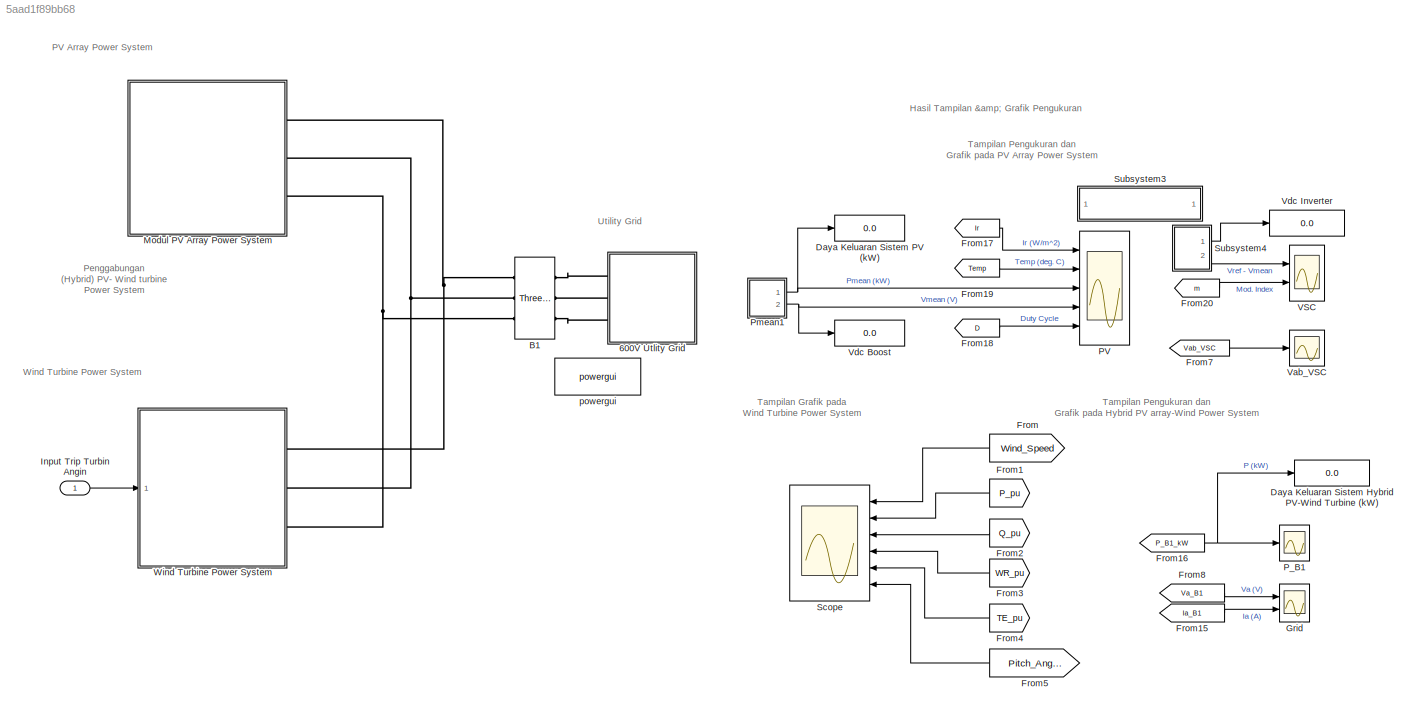
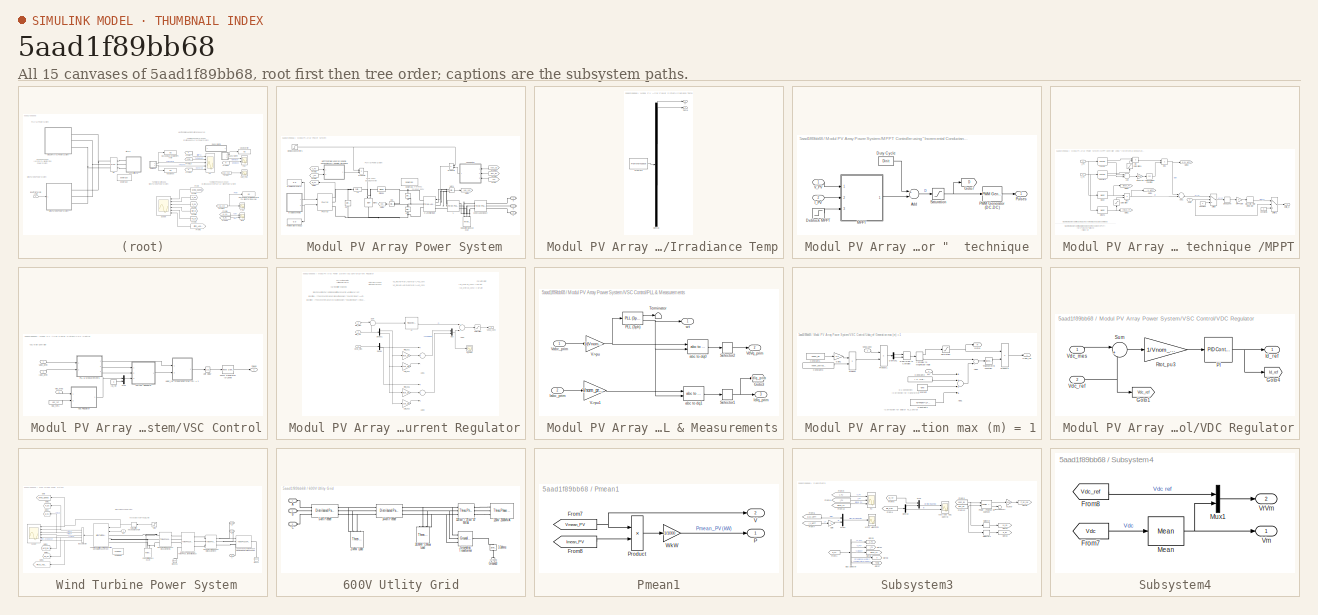
[diagram: thumbnail index - all 15 canvases of the model, root first then tree order]
MODEL slx_5aad1f89bb68
KIND model
CONFIG AbsTol = auto
CONFIG EnableMultiTasking = off
CONFIG FixedStep = auto
CONFIG MaxStep = auto
CONFIG MinStep = auto
CONFIG PreLoadFcn = Ts_Power=1e-6;\nTs_Control=100e-6;
CONFIG RelTol = 1e-3
CONFIG SampleTimeConstraint = Unconstrained
CONFIG Solver = ode5
CONFIG SolverName = ode5
CONFIG StartTime = 0.0
CONFIG StopTime = 12
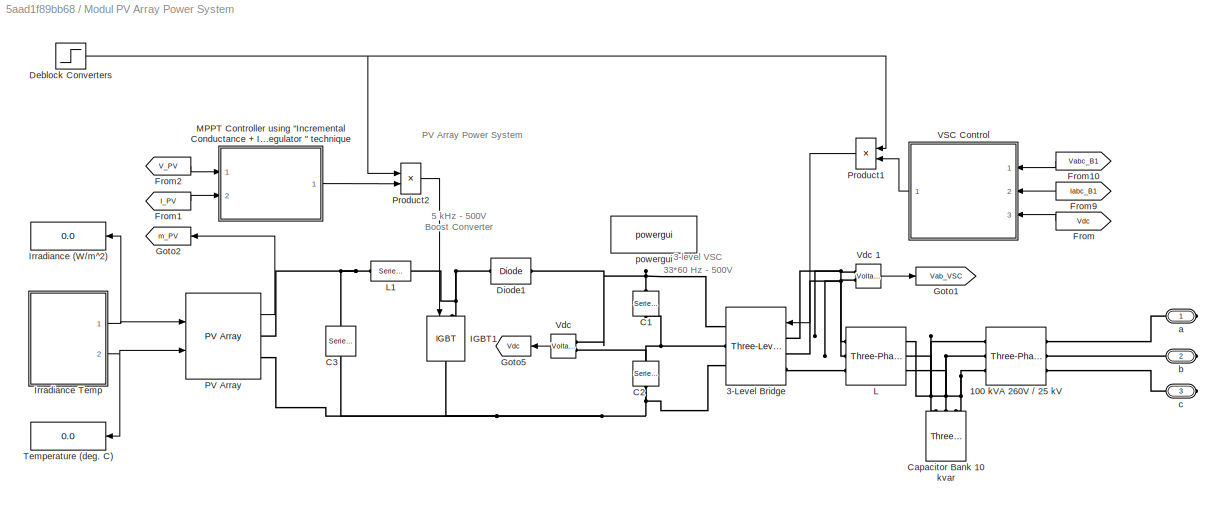
BLOCK [SubSystem]  Modul PV Array Power System
  Ports = [0, 0, 0, 0, 0, 0, 3]
  RequestExecContextInheritance = off
BLOCK [Reference]  Modul PV Array Power System/100 kVA 260V // 25 kV  REF=powerlib/Elements/Three-Phase
Transformer
(Two Windings)
  AttributesFormatString = \n
  Ports = [0, 0, 0, 0, 0, 3, 3]
  SourceBlock = powerlib/Elements/Three-Phase\nTransformer\n(Two Windings)
  SourceProductBaseCode = PS
  SourceProductName = Simscape Electrical
  SourceType = Three-Phase Transformer (Two Windings)
BLOCK [Reference]  Modul PV Array Power System/3-Level Bridge  REF=powerlib/Power
Electronics/Three-Level Bridge
  AttributesFormatString = \n
  Ports = [1, 0, 0, 0, 0, 3, 3]
  SourceBlock = powerlib/Power\nElectronics/Three-Level Bridge
  SourceProductBaseCode = PS
  SourceProductName = Simscape Electrical
  SourceType = Three-Level Bridge
BLOCK [Reference]  Modul PV Array Power System/C1  REF=powerlib/Elements/Series RLC Branch
  AttributesFormatString = \n
  Ports = [0, 0, 0, 0, 0, 1, 1]
  SourceBlock = powerlib/Elements/Series RLC Branch
  SourceProductBaseCode = PS
  SourceProductName = Simscape Electrical
  SourceType = Series RLC Branch
BLOCK [Reference]  Modul PV Array Power System/C2  REF=powerlib/Elements/Series RLC Branch
  AttributesFormatString = \n
  Ports = [0, 0, 0, 0, 0, 1, 1]
  SourceBlock = powerlib/Elements/Series RLC Branch
  SourceProductBaseCode = PS
  SourceProductName = Simscape Electrical
  SourceType = Series RLC Branch
BLOCK [Reference]  Modul PV Array Power System/C3  REF=powerlib/Elements/Series RLC Branch
  AttributesFormatString = \n
  Ports = [0, 0, 0, 0, 0, 1, 1]
  SourceBlock = powerlib/Elements/Series RLC Branch
  SourceProductBaseCode = PS
  SourceProductName = Simscape Electrical
  SourceType = Series RLC Branch
BLOCK [Reference]  Modul PV Array Power System/Capacitor Bank 10 kvar  REF=powerlib/Elements/Three-Phase
Series RLC Load
  AttributesFormatString = \n
  Ports = [0, 0, 0, 0, 0, 3]
  SourceBlock = powerlib/Elements/Three-Phase\nSeries RLC Load
  SourceProductBaseCode = PS
  SourceProductName = Simscape Electrical
  SourceType = Three-Phase Series RLC Load
BLOCK [Step]  Modul PV Array Power System/Deblock Converters
  SampleTime = 0
  Time = 0.05
BLOCK [Reference]  Modul PV Array Power System/Diode1  REF=powerlib/Power
Electronics/Diode
  Ports = [0, 0, 0, 0, 0, 1, 1]
  SourceBlock = powerlib/Power\nElectronics/Diode
  SourceProductBaseCode = PS
  SourceProductName = Simscape Electrical
  SourceType = Diode
BLOCK [From]  Modul PV Array Power System/From
  GotoTag = Vdc
  TagVisibility = global
BLOCK [From]  Modul PV Array Power System/From1
  CloseFcn = tagdialog Close
  GotoTag = I_PV
  TagVisibility = global
BLOCK [From]  Modul PV Array Power System/From10
  CloseFcn = tagdialog Close
  GotoTag = Vabc_B1
  TagVisibility = global
BLOCK [From]  Modul PV Array Power System/From2
  CloseFcn = tagdialog Close
  GotoTag = V_PV
  TagVisibility = global
BLOCK [From]  Modul PV Array Power System/From9
  CloseFcn = tagdialog Close
  GotoTag = Iabc_B1
  TagVisibility = global
BLOCK [Goto]  Modul PV Array Power System/Goto1
  GotoTag = Vab_VSC
  TagVisibility = global
BLOCK [Goto]  Modul PV Array Power System/Goto2
  GotoTag = m_PV
  TagVisibility = global
BLOCK [Goto]  Modul PV Array Power System/Goto5
  GotoTag = Vdc
  TagVisibility = global
BLOCK [Reference]  Modul PV Array Power System/IGBT1  REF=powerlib/Power
Electronics/IGBT
  Ports = [1, 0, 0, 0, 0, 1, 1]
  SourceBlock = powerlib/Power\nElectronics/IGBT
  SourceProductBaseCode = PS
  SourceProductName = Simscape Electrical
  SourceType = IGBT
BLOCK [Display]  Modul PV Array Power System/Irradiance (W//m^2)
  Decimation = 1000
  Format = bank
  Ports = [1]
BLOCK [SubSystem]  Modul PV Array Power System/Irradiance Temp
  ClipboardFcn = sigbuilder_block('clipboard');
  CloseFcn = sigbuilder_block('close');
  ContinueFcn = sigbuilder_block('continue')
  CopyFcn = sigbuilder_block('copy');
  DeleteFcn = sigbuilder_block('delete');
  LoadFcn = sigbuilder_block('load');
  MaskHideContents = on
  ModelCloseFcn = sigbuilder_block('modelClose');
  NameChangeFcn = sigbuilder_block('namechange');
  OpenFcn = sigbuilder_block('open',[216.75 77.25 531 395.25 ]);
  PauseFcn = sigbuilder_block('pause')
  Ports = [0, 2]
  PreSaveFcn = sigbuilder_block('preSave');
  RequestExecContextInheritance = off
  StartFcn = sigbuilder_block('start');
  StopFcn = sigbuilder_block('stop');
  Tag = STV Subsys
BLOCK [Demux]  Modul PV Array Power System/Irradiance Temp/Demux
  Outputs = 2
  Ports = [1, 2]
  Tag = STV Demux
BLOCK [FromWorkspace]  Modul PV Array Power System/Irradiance Temp/FromWs
  SampleTime = 0
  Tag = STV FromWs
  VariableName = tuvar
  ZeroCross = on
BLOCK [Outport]  Modul PV Array Power System/Irradiance Temp/Ir
  IconDisplay = Port number
  Tag = STV Outport
BLOCK [Outport]  Modul PV Array Power System/Irradiance Temp/Temp
  IconDisplay = Port number
  Port = 2
  Tag = STV Outport
BLOCK [Reference]  Modul PV Array Power System/L  REF=powerlib/Elements/Three-Phase
Series RLC Branch
  AttributesFormatString = \n
  Ports = [0, 0, 0, 0, 0, 3, 3]
  SourceBlock = powerlib/Elements/Three-Phase\nSeries RLC Branch
  SourceProductBaseCode = PS
  SourceProductName = Simscape Electrical
  SourceType = Three-Phase Series RLC Branch
BLOCK [Reference]  Modul PV Array Power System/L1  REF=powerlib/Elements/Series RLC Branch
  Ports = [0, 0, 0, 0, 0, 1, 1]
  SourceBlock = powerlib/Elements/Series RLC Branch
  SourceProductBaseCode = PS
  SourceProductName = Simscape Electrical
  SourceType = Series RLC Branch
BLOCK [SubSystem]  Modul PV Array Power System/MPPT Controller using  "Incremental Conductance + Integral Regulator "  technique 
  Ports = [2, 1]
  RequestExecContextInheritance = off
BLOCK [Sum]  Modul PV Array Power System/MPPT Controller using  "Incremental Conductance + Integral Regulator "  technique /Add
  InputSameDT = off
  Inputs = +-
  OutDataTypeStr = Inherit: Inherit via internal rule
  Ports = [2, 1]
  SaturateOnIntegerOverflow = off
BLOCK [Step]  Modul PV Array Power System/MPPT Controller using  "Incremental Conductance + Integral Regulator "  technique /Deblock MPPT
  SampleTime = 0
  Time = 0.4
BLOCK [Constant]  Modul PV Array Power System/MPPT Controller using  "Incremental Conductance + Integral Regulator "  technique /Duty Cycle
  Value = Dinit
BLOCK [Goto]  Modul PV Array Power System/MPPT Controller using  "Incremental Conductance + Integral Regulator "  technique /Goto7
  GotoTag = D
  TagVisibility = global
BLOCK [Inport]  Modul PV Array Power System/MPPT Controller using  "Incremental Conductance + Integral Regulator "  technique /I_PV
  IconDisplay = Port number
  Port = 2
BLOCK [SubSystem]  Modul PV Array Power System/MPPT Controller using  "Incremental Conductance + Integral Regulator "  technique /MPPT
  Ports = [3, 1]
  RequestExecContextInheritance = off
BLOCK [Sum]  Modul PV Array Power System/MPPT Controller using  "Incremental Conductance + Integral Regulator "  technique /MPPT/Add
  InputSameDT = off
  Inputs = +-
  OutDataTypeStr = Inherit: Inherit via internal rule
  Ports = [2, 1]
  SaturateOnIntegerOverflow = off
BLOCK [Sum]  Modul PV Array Power System/MPPT Controller using  "Incremental Conductance + Integral Regulator "  technique /MPPT/Add1
  InputSameDT = off
  OutDataTypeStr = Inherit: Inherit via internal rule
  Ports = [2, 1]
  SaturateOnIntegerOverflow = off
BLOCK [Constant]  Modul PV Array Power System/MPPT Controller using  "Incremental Conductance + Integral Regulator "  technique /MPPT/Constant
  Value = 0
BLOCK [Constant]  Modul PV Array Power System/MPPT Controller using  "Incremental Conductance + Integral Regulator "  technique /MPPT/Constant1
  Value = 0
BLOCK [DeadZone]  Modul PV Array Power System/MPPT Controller using  "Incremental Conductance + Integral Regulator "  technique /MPPT/Dead Zone
  LowerValue = -0.05
  UpperValue = 0.05
BLOCK [Outport]  Modul PV Array Power System/MPPT Controller using  "Incremental Conductance + Integral Regulator "  technique /MPPT/Delta_D
  IconDisplay = Port number
BLOCK [DiscreteIntegrator]  Modul PV Array Power System/MPPT Controller using  "Incremental Conductance + Integral Regulator "  technique /MPPT/Discrete-Time Integrator
  ICPrevOutput = DiscIntNeverNeededParam
  ICPrevScaledInput = DiscIntNeverNeededParam
  LimitOutput = on
  LowerSaturationLimit = -1
  Ports = [1, 1]
  SampleTime = Ts_Control
  UpperSaturationLimit = 1
BLOCK [Reference]  Modul PV Array Power System/MPPT Controller using  "Incremental Conductance + Integral Regulator "  technique /MPPT/Fourier  REF=powerlib_meascontrol/Measurements/Fourier
  Ports = [1, 2]
  SourceBlock = powerlib_meascontrol/Measurements/Fourier
  SourceProductBaseCode = PS
  SourceProductName = Simscape Electrical
  SourceType = Fourier
BLOCK [Reference]  Modul PV Array Power System/MPPT Controller using  "Incremental Conductance + Integral Regulator "  technique /MPPT/Fourier1  REF=powerlib_meascontrol/Measurements/Fourier
  Ports = [1, 2]
  SourceBlock = powerlib_meascontrol/Measurements/Fourier
  SourceProductBaseCode = PS
  SourceProductName = Simscape Electrical
  SourceType = Fourier
BLOCK [Goto]  Modul PV Array Power System/MPPT Controller using  "Incremental Conductance + Integral Regulator "  technique /MPPT/Goto1
  GotoTag = Vmean_PV
  TagVisibility = global
BLOCK [Goto]  Modul PV Array Power System/MPPT Controller using  "Incremental Conductance + Integral Regulator "  technique /MPPT/Goto2
  GotoTag = dI_dV_MPPT
  TagVisibility = global
BLOCK [Goto]  Modul PV Array Power System/MPPT Controller using  "Incremental Conductance + Integral Regulator "  technique /MPPT/Goto3
  GotoTag = I_V_MPPT
  TagVisibility = global
BLOCK [Goto]  Modul PV Array Power System/MPPT Controller using  "Incremental Conductance + Integral Regulator "  technique /MPPT/Goto5
  GotoTag = Imean_PV
  TagVisibility = global
BLOCK [Inport]  Modul PV Array Power System/MPPT Controller using  "Incremental Conductance + Integral Regulator "  technique /MPPT/I_PV
  IconDisplay = Port number
  Port = 2
BLOCK [Gain]  Modul PV Array Power System/MPPT Controller using  "Incremental Conductance + Integral Regulator "  technique /MPPT/MPPT Gain
  Gain = 5
  OutDataTypeStr = Inherit: Inherit via internal rule
  ParamDataTypeStr = Inherit: Inherit via internal rule
  SaturateOnIntegerOverflow = off
BLOCK [Reference]  Modul PV Array Power System/MPPT Controller using  "Incremental Conductance + Integral Regulator "  technique /MPPT/Mean  REF=powerlib_meascontrol/Measurements/Mean
  Ports = [1, 1]
  SourceBlock = powerlib_meascontrol/Measurements/Mean
  SourceProductBaseCode = PS
  SourceProductName = Simscape Electrical
  SourceType = Mean
BLOCK [Reference]  Modul PV Array Power System/MPPT Controller using  "Incremental Conductance + Integral Regulator "  technique /MPPT/Mean1  REF=powerlib_meascontrol/Measurements/Mean
  Ports = [1, 1]
  SourceBlock = powerlib_meascontrol/Measurements/Mean
  SourceProductBaseCode = PS
  SourceProductName = Simscape Electrical
  SourceType = Mean
BLOCK [Saturate]  Modul PV Array Power System/MPPT Controller using  "Incremental Conductance + Integral Regulator "  technique /MPPT/Saturation
  InputPortMap = u0
  LowerLimit = eps
  Ports = [1, 1]
  UpperLimit = inf
BLOCK [Saturate]  Modul PV Array Power System/MPPT Controller using  "Incremental Conductance + Integral Regulator "  technique /MPPT/Saturation1
  InputPortMap = u0
  LowerLimit = eps
  Ports = [1, 1]
  UpperLimit = inf
BLOCK [Switch]  Modul PV Array Power System/MPPT Controller using  "Incremental Conductance + Integral Regulator "  technique /MPPT/Switch
  InputSameDT = off
  SaturateOnIntegerOverflow = off
  Threshold = 0.5
BLOCK [Switch]  Modul PV Array Power System/MPPT Controller using  "Incremental Conductance + Integral Regulator "  technique /MPPT/Switch1
  InputSameDT = off
  SaturateOnIntegerOverflow = off
  Threshold = 0.5
BLOCK [Trigonometry]  Modul PV Array Power System/MPPT Controller using  "Incremental Conductance + Integral Regulator "  technique /MPPT/Trigonometric Function
  Operator = cos
  Ports = [1, 1]
BLOCK [Inport]  Modul PV Array Power System/MPPT Controller using  "Incremental Conductance + Integral Regulator "  technique /MPPT/V_PV
  IconDisplay = Port number
BLOCK [Gain]  Modul PV Array Power System/MPPT Controller using  "Incremental Conductance + Integral Regulator "  technique /MPPT/deg2rad
  Gain = pi/180
  OutDataTypeStr = Inherit: Inherit via internal rule
  ParamDataTypeStr = Inherit: Inherit via internal rule
  SaturateOnIntegerOverflow = off
BLOCK [Product]  Modul PV Array Power System/MPPT Controller using  "Incremental Conductance + Integral Regulator "  technique /MPPT/div
  InputSameDT = off
  Inputs = */
  OutDataTypeStr = Inherit: Inherit via internal rule
  Ports = [2, 1]
  SaturateOnIntegerOverflow = off
BLOCK [Product]  Modul PV Array Power System/MPPT Controller using  "Incremental Conductance + Integral Regulator "  technique /MPPT/div1
  InputSameDT = off
  Inputs = **
  OutDataTypeStr = Inherit: Inherit via internal rule
  Ports = [2, 1]
  SaturateOnIntegerOverflow = off
BLOCK [Product]  Modul PV Array Power System/MPPT Controller using  "Incremental Conductance + Integral Regulator "  technique /MPPT/div2
  InputSameDT = off
  Inputs = */
  OutDataTypeStr = Inherit: Inherit via internal rule
  Ports = [2, 1]
  SaturateOnIntegerOverflow = off
BLOCK [Inport]  Modul PV Array Power System/MPPT Controller using  "Incremental Conductance + Integral Regulator "  technique /MPPT/on//off
  IconDisplay = Port number
  Port = 3
BLOCK [Reference]  Modul PV Array Power System/MPPT Controller using  "Incremental Conductance + Integral Regulator "  technique /PWM Generator (DC-DC)  REF=powerlib_meascontrol/Pulse & Signal
Generators/PWM Generator
(DC-DC)
  Ports = [1, 1]
  SourceBlock = powerlib_meascontrol/Pulse & Signal\nGenerators/PWM Generator\n(DC-DC)
  SourceProductBaseCode = PS
  SourceProductName = Simscape Electrical
  SourceType = PWM Generator (DC-DC)
BLOCK [Outport]  Modul PV Array Power System/MPPT Controller using  "Incremental Conductance + Integral Regulator "  technique /Pulses
  IconDisplay = Port number
BLOCK [Saturate]  Modul PV Array Power System/MPPT Controller using  "Incremental Conductance + Integral Regulator "  technique /Saturation
  InputPortMap = u0
  LowerLimit = 0
  Ports = [1, 1]
  UpperLimit = 1
BLOCK [Inport]  Modul PV Array Power System/MPPT Controller using  "Incremental Conductance + Integral Regulator "  technique /V_PV
  IconDisplay = Port number
BLOCK [Reference]  Modul PV Array Power System/PV Array  REF=re_lib/Solar/PV Array
  Ports = [2, 1, 0, 0, 0, 0, 2]
  SourceBlock = re_lib/Solar/PV Array
  SourceProductBaseCode = PS
  SourceProductName = Simscape Electrical
  SourceType = PV array
BLOCK [Product]  Modul PV Array Power System/Product1
  InputSameDT = off
  OutDataTypeStr = Inherit: Inherit via internal rule
  Ports = [2, 1]
  SaturateOnIntegerOverflow = off
BLOCK [Product]  Modul PV Array Power System/Product2
  InputSameDT = off
  OutDataTypeStr = Inherit: Inherit via internal rule
  Ports = [2, 1]
  SaturateOnIntegerOverflow = off
BLOCK [Display]  Modul PV Array Power System/Temperature (deg. C)
  Decimation = 1000
  Format = bank
  Ports = [1]
BLOCK [SubSystem]  Modul PV Array Power System/VSC Control
  Ports = [3, 1]
  RequestExecContextInheritance = off
BLOCK [SubSystem]  Modul PV Array Power System/VSC Control/Current Regulator
  Ports = [3, 1]
  RequestExecContextInheritance = off
BLOCK [Sum]  Modul PV Array Power System/VSC Control/Current Regulator/Add1
  InputSameDT = off
  Inputs = ++-
  OutDataTypeStr = Inherit: Inherit via internal rule
  Ports = [3, 1]
  SaturateOnIntegerOverflow = off
BLOCK [Sum]  Modul PV Array Power System/VSC Control/Current Regulator/Add2
  InputSameDT = off
  OutDataTypeStr = Inherit: Inherit via internal rule
  Ports = [2, 1]
  SaturateOnIntegerOverflow = off
BLOCK [Sum]  Modul PV Array Power System/VSC Control/Current Regulator/Add3
  InputSameDT = off
  Inputs = +++
  OutDataTypeStr = Inherit: Inherit via internal rule
  Ports = [3, 1]
  SaturateOnIntegerOverflow = off
BLOCK [Demux]  Modul PV Array Power System/VSC Control/Current Regulator/Demux
  DisplayOption = bar
  Outputs = 2
  Ports = [1, 2]
BLOCK [Demux]  Modul PV Array Power System/VSC Control/Current Regulator/Demux1
  DisplayOption = bar
  Outputs = 2
  Ports = [1, 2]
BLOCK [Inport]  Modul PV Array Power System/VSC Control/Current Regulator/IdIq_mes
  IconDisplay = Port number
  Port = 2
  PortDimensions = 2
BLOCK [Inport]  Modul PV Array Power System/VSC Control/Current Regulator/IdIq_ref
  IconDisplay = Port number
  Port = 3
  PortDimensions = 2
BLOCK [Gain]  Modul PV Array Power System/VSC Control/Current Regulator/Ltot_pu1
  Gain = Ltot_pu
BLOCK [Gain]  Modul PV Array Power System/VSC Control/Current Regulator/Ltot_pu2
  Gain = Ltot_pu
BLOCK [Mux]  Modul PV Array Power System/VSC Control/Current Regulator/Mux
  DisplayOption = bar
  Inputs = 2
  Ports = [2, 1]
BLOCK [Reference]  Modul PV Array Power System/VSC Control/Current Regulator/PI  REF=simulink/Continuous/PID Controller
  Ports = [1, 1]
  SourceBlock = simulink/Continuous/PID Controller
  SourceProductBaseCode = SL
  SourceProductName = Simulink
  SourceType = PID 1dof
BLOCK [Scope]  Modul PV Array Power System/VSC Control/Current Regulator/PI_Ireg1
  Floating = off
  NumInputPorts = 1
  Ports = [1]
  ScopeSpecificationString = Simulink.scopes.TimeScopeBlockCfg('CurrentConfiguration', extmgr.ConfigurationSet(extmgr.Configuration('Core','General UI',true),extmgr.Configuration('Core','Source UI',true),extmgr.Configuration('Sources','WiredSimulink',true,'DataLoggingSaveFormat','Array','DataLoggingDecimation','1','DataLoggingDecimateData',true),extmgr.Configuration('Visuals','Time Domain',true,'DisplayPropertyDefaults',struc...<+826ch>
BLOCK [Gain]  Modul PV Array Power System/VSC Control/Current Regulator/Rtot_pu1
  Gain = Rtot_pu
BLOCK [Gain]  Modul PV Array Power System/VSC Control/Current Regulator/Rtot_pu5
  Gain = Rtot_pu
BLOCK [Saturate]  Modul PV Array Power System/VSC Control/Current Regulator/Saturation
  InputPortMap = u0
  LowerLimit = -2
  Ports = [1, 1]
  UpperLimit = 2
BLOCK [Sum]  Modul PV Array Power System/VSC Control/Current Regulator/Sum
  IconShape = round
  InputSameDT = off
  Inputs = |-+
  OutDataTypeStr = Inherit: Inherit via internal rule
  Ports = [2, 1]
  SaturateOnIntegerOverflow = off
BLOCK [Outport]  Modul PV Array Power System/VSC Control/Current Regulator/VdVq_conv
  IconDisplay = Port number
BLOCK [Inport]  Modul PV Array Power System/VSC Control/Current Regulator/VdVq_mes
  IconDisplay = Port number
  PortDimensions = 2
BLOCK [Inport]  Modul PV Array Power System/VSC Control/Iabc_prim
  IconDisplay = Port number
  Port = 2
  PortDimensions = 3
BLOCK [Constant]  Modul PV Array Power System/VSC Control/Iq_ref
  Value = 0
BLOCK [Mux]  Modul PV Array Power System/VSC Control/Mux
  DisplayOption = bar
  Inputs = 2
  Ports = [2, 1]
BLOCK [SubSystem]  Modul PV Array Power System/VSC Control/PLL & Measurements
  Ports = [2, 3]
  RequestExecContextInheritance = off
BLOCK [Goto]  Modul PV Array Power System/VSC Control/PLL & Measurements/Goto3
  GotoTag = IdIq_prim
  TagVisibility = global
BLOCK [Inport]  Modul PV Array Power System/VSC Control/PLL & Measurements/Iabc_prim
  IconDisplay = Port number
  Port = 2
BLOCK [Outport]  Modul PV Array Power System/VSC Control/PLL & Measurements/IdIq_prim
  IconDisplay = Port number
  Port = 3
BLOCK [Reference]  Modul PV Array Power System/VSC Control/PLL & Measurements/PLL (3ph)  REF=powerlib_meascontrol/PLL/PLL
(3ph)
  Ports = [1, 2]
  SourceBlock = powerlib_meascontrol/PLL/PLL\n(3ph)
  SourceProductBaseCode = PS
  SourceProductName = Simscape Electrical
  SourceType = PLL (3ph)
BLOCK [Selector]  Modul PV Array Power System/VSC Control/PLL & Measurements/Selector1
  IndexOptions = Index vector (dialog)
  Indices = [1 2]
  InputPortWidth = 3
  OutputSizes = 1
  Ports = [1, 1]
BLOCK [Selector]  Modul PV Array Power System/VSC Control/PLL & Measurements/Selector2
  IndexOptions = Index vector (dialog)
  Indices = [1 2]
  InputPortWidth = 3
  OutputSizes = 1
  Ports = [1, 1]
BLOCK [Terminator]  Modul PV Array Power System/VSC Control/PLL & Measurements/Terminator
BLOCK [Gain]  Modul PV Array Power System/VSC Control/PLL & Measurements/V->pu
  Gain = 1/(Vnom_prim*sqrt(2)/sqrt(3))
BLOCK [Gain]  Modul PV Array Power System/VSC Control/PLL & Measurements/V->pu1
  Gain = Vnom_prim*sqrt(3)/Pnom/sqrt(2)
BLOCK [Inport]  Modul PV Array Power System/VSC Control/PLL & Measurements/Vabc_prim
  IconDisplay = Port number
BLOCK [Outport]  Modul PV Array Power System/VSC Control/PLL & Measurements/VdVq_prim
  IconDisplay = Port number
  Port = 2
BLOCK [Reference]  Modul PV Array Power System/VSC Control/PLL & Measurements/abc to dq0  REF=powerlib_meascontrol/Transformations/abc to dq0
  Ports = [2, 1]
  SourceBlock = powerlib_meascontrol/Transformations/abc to dq0
  SourceProductBaseCode = PS
  SourceProductName = Simscape Electrical
  SourceType = abc to dq0 Transformation
BLOCK [Reference]  Modul PV Array Power System/VSC Control/PLL & Measurements/abc to dq1  REF=powerlib_meascontrol/Transformations/abc to dq0
  Ports = [2, 1]
  SourceBlock = powerlib_meascontrol/Transformations/abc to dq0
  SourceProductBaseCode = PS
  SourceProductName = Simscape Electrical
  SourceType = abc to dq0 Transformation
BLOCK [Outport]  Modul PV Array Power System/VSC Control/PLL & Measurements/wt
  IconDisplay = Port number
BLOCK [Reference]  Modul PV Array Power System/VSC Control/PWM Generator (3-Level)  REF=powerlib_meascontrol/Pulse & Signal
Generators/PWM Generator
(3-Level)
  Ports = [1, 1]
  SourceBlock = powerlib_meascontrol/Pulse & Signal\nGenerators/PWM Generator\n(3-Level)
  SourceProductBaseCode = PS
  SourceProductName = Simscape Electrical
  SourceType = PWM Generator (3-Level)
BLOCK [Outport]  Modul PV Array Power System/VSC Control/Pulses
  IconDisplay = Port number
BLOCK [SubSystem]  Modul PV Array Power System/VSC Control/Uabc_ref Generation max (m) = 1
  Ports = [2, 1]
  RequestExecContextInheritance = off
BLOCK [Sum]  Modul PV Array Power System/VSC Control/Uabc_ref Generation max (m) = 1/Add1
  InputSameDT = off
  Inputs = ++++
  OutDataTypeStr = Inherit: Inherit via internal rule
  Ports = [4, 1]
  SaturateOnIntegerOverflow = off
BLOCK [Sum]  Modul PV Array Power System/VSC Control/Uabc_ref Generation max (m) = 1/Add2
  InputSameDT = off
  OutDataTypeStr = Inherit: Inherit via internal rule
  Ports = [2, 1]
  SaturateOnIntegerOverflow = off
BLOCK [ComplexToMagnitudeAngle]  Modul PV Array Power System/VSC Control/Uabc_ref Generation max (m) = 1/Complex to Magnitude-Angle
  Ports = [1, 2]
BLOCK [Constant]  Modul PV Array Power System/VSC Control/Uabc_ref Generation max (m) = 1/Constant
  Value = -pi/6
BLOCK [Constant]  Modul PV Array Power System/VSC Control/Uabc_ref Generation max (m) = 1/Constant1
  Value = Vnom_dc
BLOCK [Constant]  Modul PV Array Power System/VSC Control/Uabc_ref Generation max (m) = 1/Constant2
  Value = [ 0  -2*pi/3  2*pi/3  ]
BLOCK [Constant]  Modul PV Array Power System/VSC Control/Uabc_ref Generation max (m) = 1/Constant3
  Value = Vnom_sec*sqrt(2)/sqrt(3)
BLOCK [Constant]  Modul PV Array Power System/VSC Control/Uabc_ref Generation max (m) = 1/Constant4
  Value = Ts*Fnom*(2*pi)
BLOCK [Demux]  Modul PV Array Power System/VSC Control/Uabc_ref Generation max (m) = 1/Demux1
  DisplayOption = bar
  Outputs = 2
  Ports = [1, 2]
BLOCK [Gain]  Modul PV Array Power System/VSC Control/Uabc_ref Generation max (m) = 1/Gain1
  Gain = 1/2
  OutDataTypeStr = Inherit: Inherit via internal rule
  ParamDataTypeStr = Inherit: Inherit via internal rule
  SaturateOnIntegerOverflow = off
BLOCK [Goto]  Modul PV Array Power System/VSC Control/Uabc_ref Generation max (m) = 1/Goto1
  GotoTag = m
  TagVisibility = global
BLOCK [Product]  Modul PV Array Power System/VSC Control/Uabc_ref Generation max (m) = 1/Product
  InputSameDT = off
  Inputs = */
  OutDataTypeStr = Inherit: Inherit via internal rule
  Ports = [2, 1]
  SaturateOnIntegerOverflow = off
BLOCK [Product]  Modul PV Array Power System/VSC Control/Uabc_ref Generation max (m) = 1/Product1
  InputSameDT = off
  Inputs = */
  OutDataTypeStr = Inherit: Inherit via internal rule
  Ports = [2, 1]
  SaturateOnIntegerOverflow = off
BLOCK [Product]  Modul PV Array Power System/VSC Control/Uabc_ref Generation max (m) = 1/Product2
  InputSameDT = off
  Inputs = **
  OutDataTypeStr = Inherit: Inherit via internal rule
  Ports = [2, 1]
  SaturateOnIntegerOverflow = off
BLOCK [RealImagToComplex]  Modul PV Array Power System/VSC Control/Uabc_ref Generation max (m) = 1/Real-Imag to Complex
  Ports = [2, 1]
BLOCK [Saturate]  Modul PV Array Power System/VSC Control/Uabc_ref Generation max (m) = 1/Saturation
  InputPortMap = u0
  LowerLimit = 0
  Ports = [1, 1]
  UpperLimit = 1
BLOCK [Trigonometry]  Modul PV Array Power System/VSC Control/Uabc_ref Generation max (m) = 1/Trigonometric Function
  Ports = [1, 1]
BLOCK [Outport]  Modul PV Array Power System/VSC Control/Uabc_ref Generation max (m) = 1/Uabc_ref
  IconDisplay = Port number
BLOCK [Inport]  Modul PV Array Power System/VSC Control/Uabc_ref Generation max (m) = 1/VdVq_conv
  IconDisplay = Port number
  Port = 2
BLOCK [Inport]  Modul PV Array Power System/VSC Control/Uabc_ref Generation max (m) = 1/wt
  IconDisplay = Port number
BLOCK [UnitDelay]  Modul PV Array Power System/VSC Control/Unit Delay
  InputProcessing = Elements as channels (sample based)
  SampleTime = Ts_Control
BLOCK [SubSystem]  Modul PV Array Power System/VSC Control/VDC Regulator
  Ports = [2, 1]
  RequestExecContextInheritance = off
BLOCK [Goto]  Modul PV Array Power System/VSC Control/VDC Regulator/Goto1
  GotoTag = Vdc_ref
  TagVisibility = global
BLOCK [Goto]  Modul PV Array Power System/VSC Control/VDC Regulator/Goto4
  GotoTag = Id_ref
  TagVisibility = global
BLOCK [Outport]  Modul PV Array Power System/VSC Control/VDC Regulator/Id_ref
  IconDisplay = Port number
  InitialOutput = 0
  SampleTime = Ts
BLOCK [Reference]  Modul PV Array Power System/VSC Control/VDC Regulator/PI  REF=simulink/Continuous/PID Controller
  Ports = [1, 1]
  SourceBlock = simulink/Continuous/PID Controller
  SourceProductBaseCode = SL
  SourceProductName = Simulink
  SourceType = PID 1dof
BLOCK [Gain]  Modul PV Array Power System/VSC Control/VDC Regulator/Rtot_pu3
  Gain = 1/Vnom_dc
BLOCK [Sum]  Modul PV Array Power System/VSC Control/VDC Regulator/Sum
  IconShape = round
  InputSameDT = off
  Inputs = |+-
  OutDataTypeStr = Inherit: Inherit via internal rule
  Ports = [2, 1]
  SaturateOnIntegerOverflow = off
BLOCK [Inport]  Modul PV Array Power System/VSC Control/VDC Regulator/Vdc_mes
  IconDisplay = Port number
  PortDimensions = 1
BLOCK [Inport]  Modul PV Array Power System/VSC Control/VDC Regulator/Vdc_ref
  IconDisplay = Port number
  Port = 2
  PortDimensions = 1
BLOCK [Inport]  Modul PV Array Power System/VSC Control/Vabc_prim
  IconDisplay = Port number
  PortDimensions = 3
BLOCK [Inport]  Modul PV Array Power System/VSC Control/Vdc_mes
  IconDisplay = Port number
  Port = 3
  PortDimensions = 1
BLOCK [Constant]  Modul PV Array Power System/VSC Control/Vdc_ref1
  Value = Vdc_ref
BLOCK [Reference]  Modul PV Array Power System/Vdc   REF=powerlib/Measurements/Voltage Measurement
  AttributesFormatString = \n
  Ports = [0, 1, 0, 0, 0, 2]
  SourceBlock = powerlib/Measurements/Voltage Measurement
  SourceProductBaseCode = PS
  SourceProductName = Simscape Electrical
  SourceType = Voltage Measurement
  Tag = PoWeRsYsTeMmEaSuReMeNt
BLOCK [Reference]  Modul PV Array Power System/Vdc 1  REF=powerlib/Measurements/Voltage Measurement
  AttributesFormatString = \n
  Ports = [0, 1, 0, 0, 0, 2]
  SourceBlock = powerlib/Measurements/Voltage Measurement
  SourceProductBaseCode = PS
  SourceProductName = Simscape Electrical
  SourceType = Voltage Measurement
  Tag = PoWeRsYsTeMmEaSuReMeNt
BLOCK [PMIOPort]  Modul PV Array Power System/a
  Side = Right
BLOCK [PMIOPort]  Modul PV Array Power System/b
  Port = 2
  Side = Right
BLOCK [PMIOPort]  Modul PV Array Power System/c
  Port = 3
  Side = Right
BLOCK [Reference]  Modul PV Array Power System/powergui  REF=powerlib/powergui
  Ports = []
  Priority = 1
  SourceBlock = powerlib/powergui
  SourceProductBaseCode = PS
  SourceProductName = Simscape Electrical
  SourceType = PSB option menu block
BLOCK [SubSystem]  Wind Turbine Power System
  Ports = [1, 0, 0, 0, 0, 0, 3]
  RequestExecContextInheritance = off
BLOCK [Reference]  Wind Turbine Power System/12kW 50Hz Wind Turbine Induction Generator (Phasor Type)  REF=re_lib/Wind Generation/Wind Turbine
Induction Generator
(Phasor Type)
  Ports = [2, 1, 0, 0, 0, 3]
  SourceBlock = re_lib/Wind Generation/Wind Turbine\nInduction Generator\n(Phasor Type)
  SourceProductBaseCode = PS
  SourceProductName = Simscape Electrical
  SourceType = Wind Turbine Induction Generator (Phasor Type)
BLOCK [Reference]  Wind Turbine Power System/19.36kV 50Hz Three-Phase Programmable Voltage Source  REF=powerlib/Electrical
Sources/Three-Phase
Programmable
Voltage Source
  Ports = [0, 0, 0, 0, 0, 1, 3]
  SourceBlock = powerlib/Electrical\nSources/Three-Phase\nProgrammable\nVoltage Source
  SourceProductBaseCode = PS
  SourceProductName = Simscape Electrical
  SourceType = Three-Phase Programmable Voltage Source
BLOCK [Reference]  Wind Turbine Power System/50kVA 19.36kV-400V Three-Phase Transformer (Two Windings)  REF=powerlib/Elements/Three-Phase
Transformer
(Two Windings)
  Ports = [0, 0, 0, 0, 0, 3, 4]
  SourceBlock = powerlib/Elements/Three-Phase\nTransformer\n(Two Windings)
  SourceProductBaseCode = PS
  SourceProductName = Simscape Electrical
  SourceType = Three-Phase Transformer (Two Windings)
BLOCK [BusSelector]  Wind Turbine Power System/Bus Selector
  OutputAsBus = off
  OutputSignals = P (pu),Q (pu),wr (pu),Te (pu),Pitch_angle (deg)
  Ports = [1, 5]
BLOCK [Reference]  Wind Turbine Power System/Busbar 1 Three-Phase V-I Measurement  REF=powerlib/Measurements/Three-Phase
V-I Measurement
  Ports = [0, 0, 0, 0, 0, 3, 3]
  SourceBlock = powerlib/Measurements/Three-Phase\nV-I Measurement
  SourceProductBaseCode = PS
  SourceProductName = Simscape Electrical
  SourceType = Three-Phase VI Measurement
BLOCK [Reference]  Wind Turbine Power System/Busbar Three-Phase V-I Measurement1  REF=powerlib/Measurements/Three-Phase
V-I Measurement
  Ports = [0, 0, 0, 0, 0, 3, 3]
  SourceBlock = powerlib/Measurements/Three-Phase\nV-I Measurement
  SourceProductBaseCode = PS
  SourceProductName = Simscape Electrical
  SourceType = Three-Phase VI Measurement
BLOCK [Reference]  Wind Turbine Power System/Capacitor Bank 4 kVAR  REF=powerlib/Elements/Three-Phase
Parallel RLC Load
  AttributesFormatString = \n
  Ports = [0, 0, 0, 0, 0, 3]
  SourceBlock = powerlib/Elements/Three-Phase\nParallel RLC Load
  SourceProductBaseCode = PS
  SourceProductName = Simscape Electrical
  SourceType = Three-Phase Parallel RLC Load
BLOCK [Goto]  Wind Turbine Power System/Goto
  GotoTag = Wind_Speed
  TagVisibility = global
BLOCK [Goto]  Wind Turbine Power System/Goto1
  GotoTag = P_pu
  TagVisibility = global
BLOCK [Goto]  Wind Turbine Power System/Goto2
  GotoTag = Q_pu
  TagVisibility = global
BLOCK [Goto]  Wind Turbine Power System/Goto3
  GotoTag = WR_pu
  TagVisibility = global
BLOCK [Goto]  Wind Turbine Power System/Goto4
  GotoTag = TE_pu
  TagVisibility = global
BLOCK [Goto]  Wind Turbine Power System/Goto5
  GotoTag = Pitch_Angle_deg
  TagVisibility = global
BLOCK [Reference]  Wind Turbine Power System/Ground  REF=powerlib/Elements/Ground
  Ports = [0, 0, 0, 0, 0, 1]
  SourceBlock = powerlib/Elements/Ground
  SourceProductBaseCode = PS
  SourceProductName = Simscape Electrical
  SourceType = Ground
BLOCK [Reference]  Wind Turbine Power System/Ground1  REF=powerlib/Elements/Ground
  Ports = [0, 0, 0, 0, 0, 1]
  SourceBlock = powerlib/Elements/Ground
  SourceProductBaseCode = PS
  SourceProductName = Simscape Electrical
  SourceType = Ground
BLOCK [Inport]  Wind Turbine Power System/In2
  IconDisplay = Port number
BLOCK [RateLimiter]  Wind Turbine Power System/Rate Limiter kecepatan angin 
BLOCK [Scope]  Wind Turbine Power System/Scope
  Floating = off
  NumInputPorts = 6
  Ports = [6]
  ScopeSpecificationString = Simulink.scopes.TimeScopeBlockCfg('CurrentConfiguration', extmgr.ConfigurationSet(extmgr.Configuration('Core','General UI',true),extmgr.Configuration('Core','Source UI',true),extmgr.Configuration('Sources','WiredSimulink',true,'DataLoggingDecimation','1','DataLoggingDecimateData',true,'DataLoggingSaveFormat','Array','DataLoggingVariableName','ScopeData1'),extmgr.Configuration('Visuals','Time Domai...<+5055ch>
BLOCK [Step]  Wind Turbine Power System/Step
  After = 12
  Before = 8
  SampleTime = 0
  Time = 5
BLOCK [PMIOPort]  Wind Turbine Power System/a
  Side = Right
BLOCK [PMIOPort]  Wind Turbine Power System/b
  Port = 2
  Side = Right
BLOCK [PMIOPort]  Wind Turbine Power System/c
  Port = 3
  Side = Right
BLOCK [Reference]  Wind Turbine Power System/powergui1  REF=powerlib/powergui
  Ports = []
  Priority = 1
  SourceBlock = powerlib/powergui
  SourceProductBaseCode = PS
  SourceProductName = Simscape Electrical
  SourceType = PSB option menu block
BLOCK [SubSystem] 600V Utlity Grid
  Ports = [0, 0, 0, 0, 0, 3]
  RequestExecContextInheritance = off
BLOCK [Reference] 600V Utlity Grid/120 kV // 25 kV 47 MVA  REF=powerlib/Elements/Three-Phase
Transformer
(Two Windings)
  AttributesFormatString = \n
  Ports = [0, 0, 0, 0, 0, 3, 3]
  SourceBlock = powerlib/Elements/Three-Phase\nTransformer\n(Two Windings)
  SourceProductBaseCode = PS
  SourceProductName = Simscape Electrical
  SourceType = Three-Phase Transformer (Two Windings)
BLOCK [Reference] 600V Utlity Grid/120kV 2500MVA  REF=powerlib/Electrical
Sources/Three-Phase Source
  Ports = [0, 0, 0, 0, 0, 0, 3]
  SourceBlock = powerlib/Electrical\nSources/Three-Phase Source
  SourceProductBaseCode = PS
  SourceProductName = Simscape Electrical
  SourceType = Three-Phase Source
BLOCK [Reference] 600V Utlity Grid/14-km Feeder  REF=powerlib/Elements/Distributed Parameters Line
  Ports = [0, 0, 0, 0, 0, 3, 3]
  SourceBlock = powerlib/Elements/Distributed Parameters Line
  SourceProductBaseCode = PS
  SourceProductName = Simscape Electrical
  SourceType = Distributed Parameters Line
BLOCK [Reference] 600V Utlity Grid/2-MW Load  REF=powerlib/Elements/Three-Phase
Parallel RLC Load
  AttributesFormatString = \n
  Ports = [0, 0, 0, 0, 0, 3]
  SourceBlock = powerlib/Elements/Three-Phase\nParallel RLC Load
  SourceProductBaseCode = PS
  SourceProductName = Simscape Electrical
  SourceType = Three-Phase Parallel RLC Load
BLOCK [Reference] 600V Utlity Grid/3.3ohms   REF=powerlib/Elements/Series RLC Branch
  Ports = [0, 0, 0, 0, 0, 1, 1]
  SourceBlock = powerlib/Elements/Series RLC Branch
  SourceProductBaseCode = PS
  SourceProductName = Simscape Electrical
  SourceType = Series RLC Branch
BLOCK [Reference] 600V Utlity Grid/30-MW 2-Mvar Load  REF=powerlib/Elements/Three-Phase
Parallel RLC Load
  AttributesFormatString = \n
  Ports = [0, 0, 0, 0, 0, 3]
  SourceBlock = powerlib/Elements/Three-Phase\nParallel RLC Load
  SourceProductBaseCode = PS
  SourceProductName = Simscape Electrical
  SourceType = Three-Phase Parallel RLC Load
BLOCK [Reference] 600V Utlity Grid/5-km Feeder  REF=powerlib/Elements/Distributed Parameters Line
  Ports = [0, 0, 0, 0, 0, 3, 3]
  SourceBlock = powerlib/Elements/Distributed Parameters Line
  SourceProductBaseCode = PS
  SourceProductName = Simscape Electrical
  SourceType = Distributed Parameters Line
BLOCK [PMIOPort] 600V Utlity Grid/A
  Side = Left
BLOCK [PMIOPort] 600V Utlity Grid/B
  Port = 2
  Side = Left
BLOCK [PMIOPort] 600V Utlity Grid/C
  Port = 3
  Side = Left
BLOCK [Reference] 600V Utlity Grid/Ground3  REF=powerlib/Elements/Ground
  AttributesFormatString = \n
  Ports = [0, 0, 0, 0, 0, 1]
  SourceBlock = powerlib/Elements/Ground
  SourceProductBaseCode = PS
  SourceProductName = Simscape Electrical
  SourceType = Ground
BLOCK [Reference] 600V Utlity Grid/Grounding Transformer   REF=powerlib/Elements/Grounding
Transformer 
  Ports = [0, 0, 0, 0, 0, 3, 1]
  SourceBlock = powerlib/Elements/Grounding\nTransformer
  SourceProductBaseCode = PS
  SourceProductName = Simscape Electrical
  SourceType = Grounding Transformer
BLOCK [Reference] B1  REF=powerlib/Measurements/Three-Phase
V-I Measurement
  Ports = [0, 0, 0, 0, 0, 3, 3]
  SourceBlock = powerlib/Measurements/Three-Phase\nV-I Measurement
  SourceProductBaseCode = PS
  SourceProductName = Simscape Electrical
  SourceType = Three-Phase VI Measurement
BLOCK [Display] Daya Keluaran Sistem Hybrid PV-Wind Turbine (kW)
  Decimation = 2000
  Format = bank
  Ports = [1]
BLOCK [Display] Daya Keluaran Sistem PV (kW) 
  Decimation = 2000
  Format = bank
  Ports = [1]
BLOCK [From] From
  GotoTag = Wind_Speed
  TagVisibility = global
BLOCK [From] From1
  GotoTag = P_pu
  TagVisibility = global
BLOCK [From] From15
  CloseFcn = tagdialog Close
  GotoTag = Ia_B1
  TagVisibility = global
BLOCK [From] From16
  CloseFcn = tagdialog Close
  GotoTag = P_B1_kW
  TagVisibility = global
BLOCK [From] From17
  CloseFcn = tagdialog Close
  GotoTag = Ir
  TagVisibility = global
BLOCK [From] From18
  CloseFcn = tagdialog Close
  GotoTag = D
  TagVisibility = global
BLOCK [From] From19
  CloseFcn = tagdialog Close
  GotoTag = Temp
  TagVisibility = global
BLOCK [From] From2
  GotoTag = Q_pu
  TagVisibility = global
BLOCK [From] From20
  CloseFcn = tagdialog Close
  GotoTag = m
  TagVisibility = global
BLOCK [From] From3
  GotoTag = WR_pu
  TagVisibility = global
BLOCK [From] From4
  GotoTag = TE_pu
  TagVisibility = global
BLOCK [From] From5
  GotoTag = Pitch_Angle_deg
  TagVisibility = global
BLOCK [From] From7
  CloseFcn = tagdialog Close
  GotoTag = Vab_VSC
  TagVisibility = global
BLOCK [From] From8
  CloseFcn = tagdialog Close
  GotoTag = Va_B1
  TagVisibility = global
BLOCK [Scope] Grid
  Floating = off
  NumInputPorts = 2
  Ports = [2]
  ScopeSpecificationString = Simulink.scopes.TimeScopeBlockCfg('CurrentConfiguration', extmgr.ConfigurationSet(extmgr.Configuration('Core','General UI',true,'FigureColor',[1 1 1]),extmgr.Configuration('Core','Source UI',true),extmgr.Configuration('Sources','WiredSimulink',true,'DataLoggingVariableName','ScopeData1','DataLoggingDecimation','20','DataLoggingDecimateData',true,'DataLoggingSaveFormat','Array'),extmgr.Configuratio...<+2548ch>
BLOCK [Inport] Input Trip Turbin Angin
  IconDisplay = Port number
BLOCK [Scope] PV
  Floating = off
  NumInputPorts = 5
  Ports = [5]
  ScopeSpecificationString = Simulink.scopes.TimeScopeBlockCfg('CurrentConfiguration', extmgr.ConfigurationSet(extmgr.Configuration('Core','General UI',true,'FigureColor',[1 1 1]),extmgr.Configuration('Core','Source UI',true),extmgr.Configuration('Sources','WiredSimulink',true,'DataLoggingVariableName','ScopeData2','DataLoggingDecimation','100','DataLoggingDecimateData',true,'DataLoggingSaveFormat','Array'),extmgr.Configurati...<+5776ch>
BLOCK [Scope] P_B1
  Floating = off
  NumInputPorts = 1
  Ports = [1]
  ScopeSpecificationString = Simulink.scopes.TimeScopeBlockCfg('CurrentConfiguration', extmgr.ConfigurationSet(extmgr.Configuration('Core','General UI',true,'FigureColor',[1 1 1]),extmgr.Configuration('Core','Source UI',true),extmgr.Configuration('Sources','WiredSimulink',true,'DataLoggingVariableName','ScopeData3','DataLoggingDecimation','100','DataLoggingDecimateData',true,'DataLoggingSaveFormat','Array'),extmgr.Configurati...<+1783ch>
BLOCK [SubSystem] Pmean1
  Ports = [0, 2]
  RequestExecContextInheritance = off
BLOCK [From] Pmean1/From7
  GotoTag = Vmean_PV
  TagVisibility = global
BLOCK [From] Pmean1/From8
  GotoTag = Imean_PV
  TagVisibility = global
BLOCK [Outport] Pmean1/P
  IconDisplay = Port number
BLOCK [Product] Pmean1/Product
  InputSameDT = off
  OutDataTypeStr = Inherit: Inherit via internal rule
  Ports = [2, 1]
  SaturateOnIntegerOverflow = off
BLOCK [Outport] Pmean1/V
  IconDisplay = Port number
  Port = 2
BLOCK [Gain] Pmean1/WkW
  Gain = 1/1000
  OutDataTypeStr = Inherit: Inherit via internal rule
  ParamDataTypeStr = Inherit: Inherit via internal rule
  SaturateOnIntegerOverflow = off
BLOCK [Scope] Scope
  Floating = off
  NumInputPorts = 6
  Ports = [6]
  ScopeSpecificationString = Simulink.scopes.TimeScopeBlockCfg('CurrentConfiguration', extmgr.ConfigurationSet(extmgr.Configuration('Core','General UI',true,'FigureColor',[1 1 1]),extmgr.Configuration('Core','Source UI',true),extmgr.Configuration('Sources','WiredSimulink',true,'DataLoggingDecimation','1','DataLoggingDecimateData',true,'DataLoggingSaveFormat','Array','DataLoggingVariableName','ScopeData1'),extmgr.Configuration...<+5927ch>
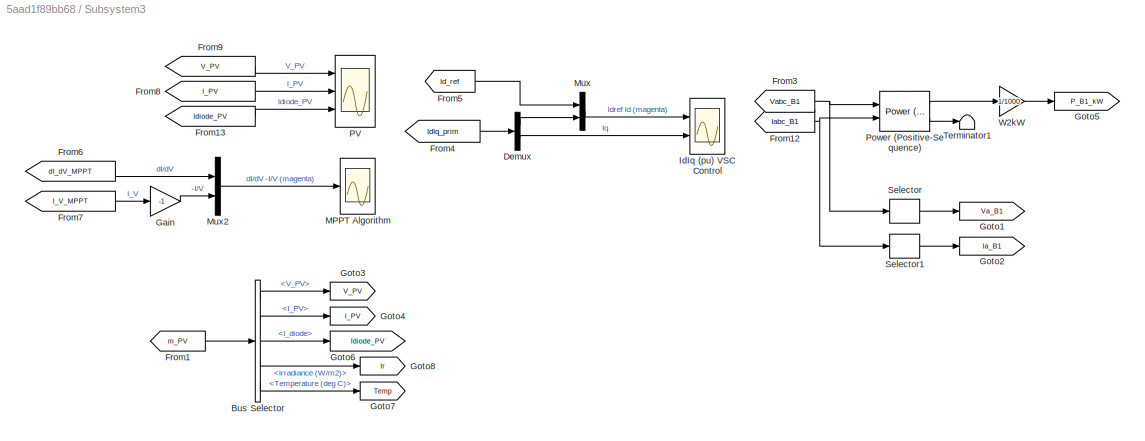
BLOCK [SubSystem] Subsystem3
  Ports = []
  RequestExecContextInheritance = off
BLOCK [BusSelector] Subsystem3/Bus Selector
  OutputAsBus = off
  OutputSignals = V_PV,I_PV,I_diode,Irradiance (W/m2),Temperature (deg C)
  Ports = [1, 5]
BLOCK [Demux] Subsystem3/Demux
  DisplayOption = bar
  Outputs = 2
  Ports = [1, 2]
BLOCK [From] Subsystem3/From1
  GotoTag = m_PV
  TagVisibility = global
BLOCK [From] Subsystem3/From12
  CloseFcn = tagdialog Close
  GotoTag = Iabc_B1
  TagVisibility = global
BLOCK [From] Subsystem3/From13
  GotoTag = Idiode_PV
  TagVisibility = global
BLOCK [From] Subsystem3/From3
  CloseFcn = tagdialog Close
  GotoTag = Vabc_B1
  TagVisibility = global
BLOCK [From] Subsystem3/From4
  CloseFcn = tagdialog Close
  GotoTag = IdIq_prim
  TagVisibility = global
BLOCK [From] Subsystem3/From5
  CloseFcn = tagdialog Close
  GotoTag = Id_ref
  TagVisibility = global
BLOCK [From] Subsystem3/From6
  GotoTag = dI_dV_MPPT
  TagVisibility = global
BLOCK [From] Subsystem3/From7
  GotoTag = I_V_MPPT
  TagVisibility = global
BLOCK [From] Subsystem3/From8
  GotoTag = I_PV
  TagVisibility = global
BLOCK [From] Subsystem3/From9
  GotoTag = V_PV
  TagVisibility = global
BLOCK [Gain] Subsystem3/Gain
  Gain = -1
  OutDataTypeStr = Inherit: Inherit via internal rule
  ParamDataTypeStr = Inherit: Inherit via internal rule
  SaturateOnIntegerOverflow = off
BLOCK [Goto] Subsystem3/Goto1
  GotoTag = Va_B1
  TagVisibility = global
BLOCK [Goto] Subsystem3/Goto2
  GotoTag = Ia_B1
  TagVisibility = global
BLOCK [Goto] Subsystem3/Goto3
  GotoTag = V_PV
  TagVisibility = global
BLOCK [Goto] Subsystem3/Goto4
  GotoTag = I_PV
  TagVisibility = global
BLOCK [Goto] Subsystem3/Goto5
  GotoTag = P_B1_kW
  TagVisibility = global
BLOCK [Goto] Subsystem3/Goto6
  GotoTag = Idiode_PV
  TagVisibility = global
BLOCK [Goto] Subsystem3/Goto7
  GotoTag = Temp
  TagVisibility = global
BLOCK [Goto] Subsystem3/Goto8
  GotoTag = Ir
  TagVisibility = global
BLOCK [Scope] Subsystem3/IdIq (pu) VSC Control
  Floating = off
  NumInputPorts = 2
  Ports = [2]
  ScopeSpecificationString = Simulink.scopes.TimeScopeBlockCfg('CurrentConfiguration', extmgr.ConfigurationSet(extmgr.Configuration('Core','General UI',true),extmgr.Configuration('Core','Source UI',true),extmgr.Configuration('Sources','WiredSimulink',true,'DataLoggingDecimation','100','DataLoggingDecimateData',true,'DataLoggingSaveFormat','Array'),extmgr.Configuration('Visuals','Time Domain',true,'SerializedDisplays',{struct(...<+2299ch>
BLOCK [Scope] Subsystem3/MPPT Algorithm
  Floating = off
  NumInputPorts = 1
  Ports = [1]
  ScopeSpecificationString = Simulink.scopes.TimeScopeBlockCfg('CurrentConfiguration', extmgr.ConfigurationSet(extmgr.Configuration('Core','General UI',true),extmgr.Configuration('Core','Source UI',true),extmgr.Configuration('Sources','WiredSimulink',true,'DataLoggingDecimation','100','DataLoggingDecimateData',true,'DataLoggingSaveFormat','Array'),extmgr.Configuration('Visuals','Time Domain',true,'DisplayPropertyDefaults',str...<+873ch>
BLOCK [Mux] Subsystem3/Mux
  DisplayOption = bar
  Inputs = 2
  Ports = [2, 1]
BLOCK [Mux] Subsystem3/Mux2
  DisplayOption = bar
  Inputs = 2
  Ports = [2, 1]
BLOCK [Scope] Subsystem3/PV
  Floating = off
  NumInputPorts = 3
  Ports = [3]
  ScopeSpecificationString = Simulink.scopes.TimeScopeBlockCfg('CurrentConfiguration', extmgr.ConfigurationSet(extmgr.Configuration('Core','General UI',true),extmgr.Configuration('Core','Source UI',true),extmgr.Configuration('Sources','WiredSimulink',true,'DataLoggingDecimation','100','DataLoggingDecimateData',true,'DataLoggingSaveFormat','Array'),extmgr.Configuration('Visuals','Time Domain',true,'SerializedDisplays',{struct(...<+2976ch>
BLOCK [Reference] Subsystem3/Power (Positive-Sequence)  REF=powerlib_meascontrol/Measurements/Power
(Positive-Sequence)
  Ports = [2, 2]
  SourceBlock = powerlib_meascontrol/Measurements/Power\n(Positive-Sequence)
  SourceProductBaseCode = PS
  SourceProductName = Simscape Electrical
  SourceType = Power (Positive-Sequence)
BLOCK [Selector] Subsystem3/Selector
  IndexOptions = Index vector (dialog)
  Indices = [1]
  InputPortWidth = 3
  OutputSizes = 1
  Ports = [1, 1]
BLOCK [Selector] Subsystem3/Selector1
  IndexOptions = Index vector (dialog)
  Indices = [1]
  InputPortWidth = 3
  OutputSizes = 1
  Ports = [1, 1]
BLOCK [Terminator] Subsystem3/Terminator1
BLOCK [Gain] Subsystem3/W2kW
  Gain = 1/1000
  OutDataTypeStr = Inherit: Inherit via internal rule
  ParamDataTypeStr = Inherit: Inherit via internal rule
  SaturateOnIntegerOverflow = off
BLOCK [SubSystem] Subsystem4
  Ports = [0, 2]
  RequestExecContextInheritance = off
BLOCK [From] Subsystem4/From7
  CloseFcn = tagdialog Close
  GotoTag = Vdc
  TagVisibility = global
BLOCK [From] Subsystem4/From8
  CloseFcn = tagdialog Close
  GotoTag = Vdc_ref
  TagVisibility = global
BLOCK [Reference] Subsystem4/Mean  REF=powerlib_meascontrol/Measurements/Mean
  Ports = [1, 1]
  SourceBlock = powerlib_meascontrol/Measurements/Mean
  SourceProductBaseCode = PS
  SourceProductName = Simscape Electrical
  SourceType = Mean
BLOCK [Mux] Subsystem4/Mux1
  DisplayOption = bar
  Inputs = 2
  Ports = [2, 1]
BLOCK [Outport] Subsystem4/Vm
  IconDisplay = Port number
BLOCK [Outport] Subsystem4/VrVm
  IconDisplay = Port number
  Port = 2
BLOCK [Scope] VSC
  Floating = off
  NumInputPorts = 2
  Ports = [2]
  ScopeSpecificationString = Simulink.scopes.TimeScopeBlockCfg('CurrentConfiguration', extmgr.ConfigurationSet(extmgr.Configuration('Core','General UI',true,'FigureColor',[1 1 1]),extmgr.Configuration('Core','Source UI',true),extmgr.Configuration('Sources','WiredSimulink',true,'DataLoggingVariableName','ScopeData4','DataLoggingDecimation','100','DataLoggingDecimateData',true,'DataLoggingSaveFormat','Array'),extmgr.Configurati...<+2569ch>
BLOCK [Scope] Vab_VSC
  Floating = off
  NumInputPorts = 1
  Ports = [1]
  ScopeSpecificationString = Simulink.scopes.TimeScopeBlockCfg('CurrentConfiguration', extmgr.ConfigurationSet(extmgr.Configuration('Core','General UI',true,'FigureColor',[1 1 1]),extmgr.Configuration('Core','Source UI',true),extmgr.Configuration('Sources','WiredSimulink',true,'DataLoggingVariableName','ScopeData5','DataLoggingDecimation','10','DataLoggingDecimateData',true,'DataLoggingSaveFormat','Array'),extmgr.Configuratio...<+1852ch>
BLOCK [Display] Vdc Boost
  Decimation = 2000
  Format = bank
  Ports = [1]
BLOCK [Display] Vdc Inverter
  Decimation = 2000
  Format = bank
  Ports = [1]
BLOCK [Reference] powergui  REF=powerlib/powergui
  Ports = []
  Priority = 1
  SourceBlock = powerlib/powergui
  SourceProductBaseCode = PS
  SourceProductName = Simscape Power Systems
  SourceType = PSB option menu block
ANNOTATION (root): Utility Grid
ANNOTATION (root): Tampilan Pengukuran dan Grafik pada Hybrid PV array-Wind Power System
ANNOTATION (root): Tampilan Pengukuran dan Grafik pada PV Array Power System
ANNOTATION (root): Tampilan Grafik pada Wind Turbine Power System
ANNOTATION (root): Penggabungan (Hybrid) PV- Wind turbine Power System
ANNOTATION (root): PV Array Power System
ANNOTATION (root): Wind Turbine Power System
ANNOTATION (root): Hasil Tampilan & Grafik Pengukuran
ANNOTATION  Modul PV Array Power System: 33*60 Hz - 500V 3-level VSC
ANNOTATION  Modul PV Array Power System: 5 kHz - 500V Boost Converter
ANNOTATION  Modul PV Array Power System: PV Array Power System
ANNOTATION  Modul PV Array Power System/MPPT Controller using  "Incremental Conductance + Integral Regulator "  technique /MPPT: Maximum power point tracking by incremental conductance method -------------------------------------------------------------- Maximum power point is obtained when dP/dV=0 where P= V*I -> d(V*I)/dV = I + V*dI/dV = 0 -> dI/dV = -I/V dI, dV = fundamental components of I and V ripples measured with a sliding time window T_MPPT I , V = mean values of V and I measured with a sliding time window T_MPPT T...<+96ch>
ANNOTATION  Modul PV Array Power System/VSC Control: VSC Main Controller
ANNOTATION  Modul PV Array Power System/VSC Control/Current Regulator: (Vd_prim - Vd_conv) ~= + Iq * Ltot
ANNOTATION  Modul PV Array Power System/VSC Control/Current Regulator: (Vq_prim - Vq_conv) ~ = - Id * Ltot
ANNOTATION  Modul PV Array Power System/VSC Control/Current Regulator: Current Regulator (with feedforward)
ANNOTATION  Modul PV Array Power System/VSC Control/Current Regulator: For Ltot >> Rtot :
ANNOTATION  Modul PV Array Power System/VSC Control/Current Regulator: Id positive --> The converter generates active power ("Inverter mode") = Active Power P positive
ANNOTATION  Modul PV Array Power System/VSC Control/Current Regulator: Iq positive --> The converter absorbs reactive power ("Inductive mode") = Reactive Power Q negative
ANNOTATION  Modul PV Array Power System/VSC Control/Current Regulator: Ltot = Lxfo + Lchoke Rtot = Rxfo + Rchoke
ANNOTATION  Modul PV Array Power System/VSC Control/Current Regulator: Sign Convention: Current going out of the converter = positive current
ANNOTATION  Modul PV Array Power System/VSC Control/Current Regulator: Vd_mes + Id*R - Iq*L + deriv(Id)*L= Vd_conv
ANNOTATION  Modul PV Array Power System/VSC Control/Current Regulator: Vq_mes + Id*L + Iq*R + deriv(Iq)*L= Vq_conv
ANNOTATION  Modul PV Array Power System/VSC Control/Current Regulator: harmonic filter neglected
ANNOTATION  Modul PV Array Power System/VSC Control/Uabc_ref Generation max (m) = 1: (Correction for delai of Ts_Control)
ANNOTATION  Modul PV Array Power System/VSC Control/Uabc_ref Generation max (m) = 1: (Correction for transformer D1 connection)
ANNOTATION  Wind Turbine Power System: Wind Turbine Power System
ANNOTATION  Wind Turbine Power System: Kecepatan Angin = 8->12 m/s
NET  Modul PV Array Power System/Deblock Converters:1 ->  Modul PV Array Power System/Product1:1,  Modul PV Array Power System/Product2:1
LINE  Modul PV Array Power System/From10:1 ->  Modul PV Array Power System/VSC Control:1
LINE  Modul PV Array Power System/From1:1 ->  Modul PV Array Power System/MPPT Controller using  "Incremental Conductance + Integral Regulator "  technique :2
LINE  Modul PV Array Power System/From2:1 ->  Modul PV Array Power System/MPPT Controller using  "Incremental Conductance + Integral Regulator "  technique :1
LINE  Modul PV Array Power System/From9:1 ->  Modul PV Array Power System/VSC Control:2
LINE  Modul PV Array Power System/From:1 ->  Modul PV Array Power System/VSC Control:3
NET  Modul PV Array Power System/Irradiance Temp:1 ->  Modul PV Array Power System/Irradiance (W//m^2):1,  Modul PV Array Power System/PV Array:1
NET  Modul PV Array Power System/Irradiance Temp:2 ->  Modul PV Array Power System/PV Array:2,  Modul PV Array Power System/Temperature (deg. C):1
LINE  Modul PV Array Power System/MPPT Controller using  "Incremental Conductance + Integral Regulator "  technique /Add:1 ->  Modul PV Array Power System/MPPT Controller using  "Incremental Conductance + Integral Regulator "  technique /Saturation:1
LINE  Modul PV Array Power System/MPPT Controller using  "Incremental Conductance + Integral Regulator "  technique /Deblock MPPT:1 ->  Modul PV Array Power System/MPPT Controller using  "Incremental Conductance + Integral Regulator "  technique /MPPT:3
LINE  Modul PV Array Power System/MPPT Controller using  "Incremental Conductance + Integral Regulator "  technique /Duty Cycle:1 ->  Modul PV Array Power System/MPPT Controller using  "Incremental Conductance + Integral Regulator "  technique /Add:1
LINE  Modul PV Array Power System/MPPT Controller using  "Incremental Conductance + Integral Regulator "  technique /I_PV:1 ->  Modul PV Array Power System/MPPT Controller using  "Incremental Conductance + Integral Regulator "  technique /MPPT:2
LINE  Modul PV Array Power System/MPPT Controller using  "Incremental Conductance + Integral Regulator "  technique /MPPT/Add1:1 ->  Modul PV Array Power System/MPPT Controller using  "Incremental Conductance + Integral Regulator "  technique /MPPT/Switch:1
LINE  Modul PV Array Power System/MPPT Controller using  "Incremental Conductance + Integral Regulator "  technique /MPPT/Add:1 ->  Modul PV Array Power System/MPPT Controller using  "Incremental Conductance + Integral Regulator "  technique /MPPT/deg2rad:1
LINE  Modul PV Array Power System/MPPT Controller using  "Incremental Conductance + Integral Regulator "  technique /MPPT/Constant1:1 ->  Modul PV Array Power System/MPPT Controller using  "Incremental Conductance + Integral Regulator "  technique /MPPT/Switch1:3
LINE  Modul PV Array Power System/MPPT Controller using  "Incremental Conductance + Integral Regulator "  technique /MPPT/Constant:1 ->  Modul PV Array Power System/MPPT Controller using  "Incremental Conductance + Integral Regulator "  technique /MPPT/Switch:3
LINE  Modul PV Array Power System/MPPT Controller using  "Incremental Conductance + Integral Regulator "  technique /MPPT/Dead Zone:1 ->  Modul PV Array Power System/MPPT Controller using  "Incremental Conductance + Integral Regulator "  technique /MPPT/MPPT Gain:1
LINE  Modul PV Array Power System/MPPT Controller using  "Incremental Conductance + Integral Regulator "  technique /MPPT/Discrete-Time Integrator:1 ->  Modul PV Array Power System/MPPT Controller using  "Incremental Conductance + Integral Regulator "  technique /MPPT/Switch1:1
LINE  Modul PV Array Power System/MPPT Controller using  "Incremental Conductance + Integral Regulator "  technique /MPPT/Fourier1:1 ->  Modul PV Array Power System/MPPT Controller using  "Incremental Conductance + Integral Regulator "  technique /MPPT/Saturation1:1
LINE  Modul PV Array Power System/MPPT Controller using  "Incremental Conductance + Integral Regulator "  technique /MPPT/Fourier1:2 ->  Modul PV Array Power System/MPPT Controller using  "Incremental Conductance + Integral Regulator "  technique /MPPT/Add:2
LINE  Modul PV Array Power System/MPPT Controller using  "Incremental Conductance + Integral Regulator "  technique /MPPT/Fourier:1 ->  Modul PV Array Power System/MPPT Controller using  "Incremental Conductance + Integral Regulator "  technique /MPPT/div:1
LINE  Modul PV Array Power System/MPPT Controller using  "Incremental Conductance + Integral Regulator "  technique /MPPT/Fourier:2 ->  Modul PV Array Power System/MPPT Controller using  "Incremental Conductance + Integral Regulator "  technique /MPPT/Add:1
NET  Modul PV Array Power System/MPPT Controller using  "Incremental Conductance + Integral Regulator "  technique /MPPT/I_PV:1 ->  Modul PV Array Power System/MPPT Controller using  "Incremental Conductance + Integral Regulator "  technique /MPPT/Fourier:1,  Modul PV Array Power System/MPPT Controller using  "Incremental Conductance + Integral Regulator "  technique /MPPT/Mean:1
LINE  Modul PV Array Power System/MPPT Controller using  "Incremental Conductance + Integral Regulator "  technique /MPPT/MPPT Gain:1 ->  Modul PV Array Power System/MPPT Controller using  "Incremental Conductance + Integral Regulator "  technique /MPPT/Discrete-Time Integrator:1
NET  Modul PV Array Power System/MPPT Controller using  "Incremental Conductance + Integral Regulator "  technique /MPPT/Mean1:1 ->  Modul PV Array Power System/MPPT Controller using  "Incremental Conductance + Integral Regulator "  technique /MPPT/Goto1:1,  Modul PV Array Power System/MPPT Controller using  "Incremental Conductance + Integral Regulator "  technique /MPPT/Saturation:1
NET  Modul PV Array Power System/MPPT Controller using  "Incremental Conductance + Integral Regulator "  technique /MPPT/Mean:1 ->  Modul PV Array Power System/MPPT Controller using  "Incremental Conductance + Integral Regulator "  technique /MPPT/Goto5:1,  Modul PV Array Power System/MPPT Controller using  "Incremental Conductance + Integral Regulator "  technique /MPPT/div2:1
LINE  Modul PV Array Power System/MPPT Controller using  "Incremental Conductance + Integral Regulator "  technique /MPPT/Saturation1:1 ->  Modul PV Array Power System/MPPT Controller using  "Incremental Conductance + Integral Regulator "  technique /MPPT/div:2
LINE  Modul PV Array Power System/MPPT Controller using  "Incremental Conductance + Integral Regulator "  technique /MPPT/Saturation:1 ->  Modul PV Array Power System/MPPT Controller using  "Incremental Conductance + Integral Regulator "  technique /MPPT/div2:2
LINE  Modul PV Array Power System/MPPT Controller using  "Incremental Conductance + Integral Regulator "  technique /MPPT/Switch1:1 ->  Modul PV Array Power System/MPPT Controller using  "Incremental Conductance + Integral Regulator "  technique /MPPT/Delta_D:1
LINE  Modul PV Array Power System/MPPT Controller using  "Incremental Conductance + Integral Regulator "  technique /MPPT/Switch:1 ->  Modul PV Array Power System/MPPT Controller using  "Incremental Conductance + Integral Regulator "  technique /MPPT/Dead Zone:1
LINE  Modul PV Array Power System/MPPT Controller using  "Incremental Conductance + Integral Regulator "  technique /MPPT/Trigonometric Function:1 ->  Modul PV Array Power System/MPPT Controller using  "Incremental Conductance + Integral Regulator "  technique /MPPT/div1:2
NET  Modul PV Array Power System/MPPT Controller using  "Incremental Conductance + Integral Regulator "  technique /MPPT/V_PV:1 ->  Modul PV Array Power System/MPPT Controller using  "Incremental Conductance + Integral Regulator "  technique /MPPT/Fourier1:1,  Modul PV Array Power System/MPPT Controller using  "Incremental Conductance + Integral Regulator "  technique /MPPT/Mean1:1
LINE  Modul PV Array Power System/MPPT Controller using  "Incremental Conductance + Integral Regulator "  technique /MPPT/deg2rad:1 ->  Modul PV Array Power System/MPPT Controller using  "Incremental Conductance + Integral Regulator "  technique /MPPT/Trigonometric Function:1
NET  Modul PV Array Power System/MPPT Controller using  "Incremental Conductance + Integral Regulator "  technique /MPPT/div1:1 ->  Modul PV Array Power System/MPPT Controller using  "Incremental Conductance + Integral Regulator "  technique /MPPT/Add1:1,  Modul PV Array Power System/MPPT Controller using  "Incremental Conductance + Integral Regulator "  technique /MPPT/Goto2:1
NET  Modul PV Array Power System/MPPT Controller using  "Incremental Conductance + Integral Regulator "  technique /MPPT/div2:1 ->  Modul PV Array Power System/MPPT Controller using  "Incremental Conductance + Integral Regulator "  technique /MPPT/Add1:2,  Modul PV Array Power System/MPPT Controller using  "Incremental Conductance + Integral Regulator "  technique /MPPT/Goto3:1
LINE  Modul PV Array Power System/MPPT Controller using  "Incremental Conductance + Integral Regulator "  technique /MPPT/div:1 ->  Modul PV Array Power System/MPPT Controller using  "Incremental Conductance + Integral Regulator "  technique /MPPT/div1:1
NET  Modul PV Array Power System/MPPT Controller using  "Incremental Conductance + Integral Regulator "  technique /MPPT/on//off:1 ->  Modul PV Array Power System/MPPT Controller using  "Incremental Conductance + Integral Regulator "  technique /MPPT/Switch1:2,  Modul PV Array Power System/MPPT Controller using  "Incremental Conductance + Integral Regulator "  technique /MPPT/Switch:2
LINE  Modul PV Array Power System/MPPT Controller using  "Incremental Conductance + Integral Regulator "  technique /MPPT:1 ->  Modul PV Array Power System/MPPT Controller using  "Incremental Conductance + Integral Regulator "  technique /Add:2
LINE  Modul PV Array Power System/MPPT Controller using  "Incremental Conductance + Integral Regulator "  technique /PWM Generator (DC-DC):1 ->  Modul PV Array Power System/MPPT Controller using  "Incremental Conductance + Integral Regulator "  technique /Pulses:1
NET  Modul PV Array Power System/MPPT Controller using  "Incremental Conductance + Integral Regulator "  technique /Saturation:1 ->  Modul PV Array Power System/MPPT Controller using  "Incremental Conductance + Integral Regulator "  technique /Goto7:1,  Modul PV Array Power System/MPPT Controller using  "Incremental Conductance + Integral Regulator "  technique /PWM Generator (DC-DC):1
LINE  Modul PV Array Power System/MPPT Controller using  "Incremental Conductance + Integral Regulator "  technique /V_PV:1 ->  Modul PV Array Power System/MPPT Controller using  "Incremental Conductance + Integral Regulator "  technique /MPPT:1
LINE  Modul PV Array Power System/MPPT Controller using  "Incremental Conductance + Integral Regulator "  technique :1 ->  Modul PV Array Power System/Product2:2
LINE  Modul PV Array Power System/PV Array:1 ->  Modul PV Array Power System/Goto2:1
LINE  Modul PV Array Power System/Product1:1 ->  Modul PV Array Power System/3-Level Bridge:1
LINE  Modul PV Array Power System/Product2:1 ->  Modul PV Array Power System/IGBT1:1
LINE  Modul PV Array Power System/VSC Control/Current Regulator/Add1:1 ->  Modul PV Array Power System/VSC Control/Current Regulator/Mux:1
LINE  Modul PV Array Power System/VSC Control/Current Regulator/Add2:1 ->  Modul PV Array Power System/VSC Control/Current Regulator/Saturation:1
LINE  Modul PV Array Power System/VSC Control/Current Regulator/Add3:1 ->  Modul PV Array Power System/VSC Control/Current Regulator/Mux:2
NET  Modul PV Array Power System/VSC Control/Current Regulator/Demux1:1 ->  Modul PV Array Power System/VSC Control/Current Regulator/Ltot_pu2:1,  Modul PV Array Power System/VSC Control/Current Regulator/Rtot_pu1:1
NET  Modul PV Array Power System/VSC Control/Current Regulator/Demux1:2 ->  Modul PV Array Power System/VSC Control/Current Regulator/Ltot_pu1:1,  Modul PV Array Power System/VSC Control/Current Regulator/Rtot_pu5:1
LINE  Modul PV Array Power System/VSC Control/Current Regulator/Demux:1 ->  Modul PV Array Power System/VSC Control/Current Regulator/Add1:1
LINE  Modul PV Array Power System/VSC Control/Current Regulator/Demux:2 ->  Modul PV Array Power System/VSC Control/Current Regulator/Add3:1
LINE  Modul PV Array Power System/VSC Control/Current Regulator/IdIq_mes:1 ->  Modul PV Array Power System/VSC Control/Current Regulator/Sum:1
NET  Modul PV Array Power System/VSC Control/Current Regulator/IdIq_ref:1 ->  Modul PV Array Power System/VSC Control/Current Regulator/Demux1:1,  Modul PV Array Power System/VSC Control/Current Regulator/Sum:2
LINE  Modul PV Array Power System/VSC Control/Current Regulator/Ltot_pu1:1 ->  Modul PV Array Power System/VSC Control/Current Regulator/Add1:3
LINE  Modul PV Array Power System/VSC Control/Current Regulator/Ltot_pu2:1 ->  Modul PV Array Power System/VSC Control/Current Regulator/Add3:3
NET  Modul PV Array Power System/VSC Control/Current Regulator/Mux:1 ->  Modul PV Array Power System/VSC Control/Current Regulator/Add2:2,  Modul PV Array Power System/VSC Control/Current Regulator/PI_Ireg1:1
LINE  Modul PV Array Power System/VSC Control/Current Regulator/PI:1 ->  Modul PV Array Power System/VSC Control/Current Regulator/Add2:1
LINE  Modul PV Array Power System/VSC Control/Current Regulator/Rtot_pu1:1 ->  Modul PV Array Power System/VSC Control/Current Regulator/Add1:2
LINE  Modul PV Array Power System/VSC Control/Current Regulator/Rtot_pu5:1 ->  Modul PV Array Power System/VSC Control/Current Regulator/Add3:2
LINE  Modul PV Array Power System/VSC Control/Current Regulator/Saturation:1 ->  Modul PV Array Power System/VSC Control/Current Regulator/VdVq_conv:1
LINE  Modul PV Array Power System/VSC Control/Current Regulator/Sum:1 ->  Modul PV Array Power System/VSC Control/Current Regulator/PI:1
LINE  Modul PV Array Power System/VSC Control/Current Regulator/VdVq_mes:1 ->  Modul PV Array Power System/VSC Control/Current Regulator/Demux:1
LINE  Modul PV Array Power System/VSC Control/Current Regulator:1 ->  Modul PV Array Power System/VSC Control/Uabc_ref Generation max (m) = 1:2
LINE  Modul PV Array Power System/VSC Control/Iabc_prim:1 ->  Modul PV Array Power System/VSC Control/PLL & Measurements:2
LINE  Modul PV Array Power System/VSC Control/Iq_ref:1 ->  Modul PV Array Power System/VSC Control/Mux:2
LINE  Modul PV Array Power System/VSC Control/Mux:1 ->  Modul PV Array Power System/VSC Control/Current Regulator:3
LINE  Modul PV Array Power System/VSC Control/PLL & Measurements/Iabc_prim:1 ->  Modul PV Array Power System/VSC Control/PLL & Measurements/V->pu1:1
LINE  Modul PV Array Power System/VSC Control/PLL & Measurements/PLL (3ph):1 ->  Modul PV Array Power System/VSC Control/PLL & Measurements/Terminator:1
NET  Modul PV Array Power System/VSC Control/PLL & Measurements/PLL (3ph):2 ->  Modul PV Array Power System/VSC Control/PLL & Measurements/abc to dq0:2,  Modul PV Array Power System/VSC Control/PLL & Measurements/abc to dq1:2,  Modul PV Array Power System/VSC Control/PLL & Measurements/wt:1
NET  Modul PV Array Power System/VSC Control/PLL & Measurements/Selector1:1 ->  Modul PV Array Power System/VSC Control/PLL & Measurements/Goto3:1,  Modul PV Array Power System/VSC Control/PLL & Measurements/IdIq_prim:1
LINE  Modul PV Array Power System/VSC Control/PLL & Measurements/Selector2:1 ->  Modul PV Array Power System/VSC Control/PLL & Measurements/VdVq_prim:1
LINE  Modul PV Array Power System/VSC Control/PLL & Measurements/V->pu1:1 ->  Modul PV Array Power System/VSC Control/PLL & Measurements/abc to dq1:1
NET  Modul PV Array Power System/VSC Control/PLL & Measurements/V->pu:1 ->  Modul PV Array Power System/VSC Control/PLL & Measurements/PLL (3ph):1,  Modul PV Array Power System/VSC Control/PLL & Measurements/abc to dq0:1
LINE  Modul PV Array Power System/VSC Control/PLL & Measurements/Vabc_prim:1 ->  Modul PV Array Power System/VSC Control/PLL & Measurements/V->pu:1
LINE  Modul PV Array Power System/VSC Control/PLL & Measurements/abc to dq0:1 ->  Modul PV Array Power System/VSC Control/PLL & Measurements/Selector2:1
LINE  Modul PV Array Power System/VSC Control/PLL & Measurements/abc to dq1:1 ->  Modul PV Array Power System/VSC Control/PLL & Measurements/Selector1:1
LINE  Modul PV Array Power System/VSC Control/PLL & Measurements:1 ->  Modul PV Array Power System/VSC Control/Uabc_ref Generation max (m) = 1:1
LINE  Modul PV Array Power System/VSC Control/PLL & Measurements:2 ->  Modul PV Array Power System/VSC Control/Current Regulator:1
LINE  Modul PV Array Power System/VSC Control/PLL & Measurements:3 ->  Modul PV Array Power System/VSC Control/Current Regulator:2
LINE  Modul PV Array Power System/VSC Control/PWM Generator (3-Level):1 ->  Modul PV Array Power System/VSC Control/Pulses:1
LINE  Modul PV Array Power System/VSC Control/Uabc_ref Generation max (m) = 1/Add1:1 ->  Modul PV Array Power System/VSC Control/Uabc_ref Generation max (m) = 1/Add2:2
LINE  Modul PV Array Power System/VSC Control/Uabc_ref Generation max (m) = 1/Add2:1 ->  Modul PV Array Power System/VSC Control/Uabc_ref Generation max (m) = 1/Trigonometric Function:1
LINE  Modul PV Array Power System/VSC Control/Uabc_ref Generation max (m) = 1/Complex to Magnitude-Angle:1 ->  Modul PV Array Power System/VSC Control/Uabc_ref Generation max (m) = 1/Saturation:1
LINE  Modul PV Array Power System/VSC Control/Uabc_ref Generation max (m) = 1/Complex to Magnitude-Angle:2 ->  Modul PV Array Power System/VSC Control/Uabc_ref Generation max (m) = 1/Add2:1
LINE  Modul PV Array Power System/VSC Control/Uabc_ref Generation max (m) = 1/Constant1:1 ->  Modul PV Array Power System/VSC Control/Uabc_ref Generation max (m) = 1/Gain1:1
LINE  Modul PV Array Power System/VSC Control/Uabc_ref Generation max (m) = 1/Constant2:1 ->  Modul PV Array Power System/VSC Control/Uabc_ref Generation max (m) = 1/Add1:2
LINE  Modul PV Array Power System/VSC Control/Uabc_ref Generation max (m) = 1/Constant3:1 ->  Modul PV Array Power System/VSC Control/Uabc_ref Generation max (m) = 1/Product:2
LINE  Modul PV Array Power System/VSC Control/Uabc_ref Generation max (m) = 1/Constant4:1 ->  Modul PV Array Power System/VSC Control/Uabc_ref Generation max (m) = 1/Add1:4
LINE  Modul PV Array Power System/VSC Control/Uabc_ref Generation max (m) = 1/Constant:1 ->  Modul PV Array Power System/VSC Control/Uabc_ref Generation max (m) = 1/Add1:3
LINE  Modul PV Array Power System/VSC Control/Uabc_ref Generation max (m) = 1/Demux1:1 ->  Modul PV Array Power System/VSC Control/Uabc_ref Generation max (m) = 1/Real-Imag to Complex:1
LINE  Modul PV Array Power System/VSC Control/Uabc_ref Generation max (m) = 1/Demux1:2 ->  Modul PV Array Power System/VSC Control/Uabc_ref Generation max (m) = 1/Real-Imag to Complex:2
LINE  Modul PV Array Power System/VSC Control/Uabc_ref Generation max (m) = 1/Gain1:1 ->  Modul PV Array Power System/VSC Control/Uabc_ref Generation max (m) = 1/Product:1
LINE  Modul PV Array Power System/VSC Control/Uabc_ref Generation max (m) = 1/Product1:1 ->  Modul PV Array Power System/VSC Control/Uabc_ref Generation max (m) = 1/Demux1:1
LINE  Modul PV Array Power System/VSC Control/Uabc_ref Generation max (m) = 1/Product2:1 ->  Modul PV Array Power System/VSC Control/Uabc_ref Generation max (m) = 1/Uabc_ref:1
LINE  Modul PV Array Power System/VSC Control/Uabc_ref Generation max (m) = 1/Product:1 ->  Modul PV Array Power System/VSC Control/Uabc_ref Generation max (m) = 1/Product1:2
LINE  Modul PV Array Power System/VSC Control/Uabc_ref Generation max (m) = 1/Real-Imag to Complex:1 ->  Modul PV Array Power System/VSC Control/Uabc_ref Generation max (m) = 1/Complex to Magnitude-Angle:1
NET  Modul PV Array Power System/VSC Control/Uabc_ref Generation max (m) = 1/Saturation:1 ->  Modul PV Array Power System/VSC Control/Uabc_ref Generation max (m) = 1/Goto1:1,  Modul PV Array Power System/VSC Control/Uabc_ref Generation max (m) = 1/Product2:1
LINE  Modul PV Array Power System/VSC Control/Uabc_ref Generation max (m) = 1/Trigonometric Function:1 ->  Modul PV Array Power System/VSC Control/Uabc_ref Generation max (m) = 1/Product2:2
LINE  Modul PV Array Power System/VSC Control/Uabc_ref Generation max (m) = 1/VdVq_conv:1 ->  Modul PV Array Power System/VSC Control/Uabc_ref Generation max (m) = 1/Product1:1
LINE  Modul PV Array Power System/VSC Control/Uabc_ref Generation max (m) = 1/wt:1 ->  Modul PV Array Power System/VSC Control/Uabc_ref Generation max (m) = 1/Add1:1
LINE  Modul PV Array Power System/VSC Control/Uabc_ref Generation max (m) = 1:1 ->  Modul PV Array Power System/VSC Control/Unit Delay:1
LINE  Modul PV Array Power System/VSC Control/Unit Delay:1 ->  Modul PV Array Power System/VSC Control/PWM Generator (3-Level):1
NET  Modul PV Array Power System/VSC Control/VDC Regulator/PI:1 ->  Modul PV Array Power System/VSC Control/VDC Regulator/Goto4:1,  Modul PV Array Power System/VSC Control/VDC Regulator/Id_ref:1
LINE  Modul PV Array Power System/VSC Control/VDC Regulator/Rtot_pu3:1 ->  Modul PV Array Power System/VSC Control/VDC Regulator/PI:1
LINE  Modul PV Array Power System/VSC Control/VDC Regulator/Sum:1 ->  Modul PV Array Power System/VSC Control/VDC Regulator/Rtot_pu3:1
LINE  Modul PV Array Power System/VSC Control/VDC Regulator/Vdc_mes:1 ->  Modul PV Array Power System/VSC Control/VDC Regulator/Sum:1
NET  Modul PV Array Power System/VSC Control/VDC Regulator/Vdc_ref:1 ->  Modul PV Array Power System/VSC Control/VDC Regulator/Goto1:1,  Modul PV Array Power System/VSC Control/VDC Regulator/Sum:2
LINE  Modul PV Array Power System/VSC Control/VDC Regulator:1 ->  Modul PV Array Power System/VSC Control/Mux:1
LINE  Modul PV Array Power System/VSC Control/Vabc_prim:1 ->  Modul PV Array Power System/VSC Control/PLL & Measurements:1
LINE  Modul PV Array Power System/VSC Control/Vdc_mes:1 ->  Modul PV Array Power System/VSC Control/VDC Regulator:1
LINE  Modul PV Array Power System/VSC Control/Vdc_ref1:1 ->  Modul PV Array Power System/VSC Control/VDC Regulator:2
LINE  Modul PV Array Power System/VSC Control:1 ->  Modul PV Array Power System/Product1:2
LINE  Modul PV Array Power System/Vdc 1:1 ->  Modul PV Array Power System/Goto1:1
LINE  Modul PV Array Power System/Vdc :1 ->  Modul PV Array Power System/Goto5:1
LINE  Wind Turbine Power System/12kW 50Hz Wind Turbine Induction Generator (Phasor Type):1 ->  Wind Turbine Power System/Bus Selector:1
NET  Wind Turbine Power System/Bus Selector:1 ->  Wind Turbine Power System/Goto1:1,  Wind Turbine Power System/Scope:2
NET  Wind Turbine Power System/Bus Selector:2 ->  Wind Turbine Power System/Goto2:1,  Wind Turbine Power System/Scope:3
NET  Wind Turbine Power System/Bus Selector:3 ->  Wind Turbine Power System/Goto3:1,  Wind Turbine Power System/Scope:4
NET  Wind Turbine Power System/Bus Selector:4 ->  Wind Turbine Power System/Goto4:1,  Wind Turbine Power System/Scope:5
NET  Wind Turbine Power System/Bus Selector:5 ->  Wind Turbine Power System/Goto5:1,  Wind Turbine Power System/Scope:6
LINE  Wind Turbine Power System/In2:1 ->  Wind Turbine Power System/12kW 50Hz Wind Turbine Induction Generator (Phasor Type):2
NET  Wind Turbine Power System/Rate Limiter kecepatan angin :1 ->  Wind Turbine Power System/12kW 50Hz Wind Turbine Induction Generator (Phasor Type):1,  Wind Turbine Power System/Goto:1,  Wind Turbine Power System/Scope:1
LINE  Wind Turbine Power System/Step:1 ->  Wind Turbine Power System/Rate Limiter kecepatan angin :1
LINE From15:1 -> Grid:2
NET From16:1 -> Daya Keluaran Sistem Hybrid PV-Wind Turbine (kW):1, P_B1:1
LINE From17:1 -> PV:1
LINE From18:1 -> PV:5
LINE From19:1 -> PV:2
LINE From1:1 -> Scope:2
LINE From20:1 -> VSC:2
LINE From2:1 -> Scope:3
LINE From3:1 -> Scope:4
LINE From4:1 -> Scope:5
LINE From5:1 -> Scope:6
LINE From7:1 -> Vab_VSC:1
LINE From8:1 -> Grid:1
LINE From:1 -> Scope:1
LINE Input Trip Turbin Angin:1 ->  Wind Turbine Power System:1
NET Pmean1/From7:1 -> Pmean1/Product:1, Pmean1/V:1
LINE Pmean1/From8:1 -> Pmean1/Product:2
LINE Pmean1/Product:1 -> Pmean1/WkW:1
LINE Pmean1/WkW:1 -> Pmean1/P:1
NET Pmean1:1 -> Daya Keluaran Sistem PV (kW) :1, PV:3
NET Pmean1:2 -> PV:4, Vdc Boost:1
LINE Subsystem3/Bus Selector:1 -> Subsystem3/Goto3:1
LINE Subsystem3/Bus Selector:2 -> Subsystem3/Goto4:1
LINE Subsystem3/Bus Selector:3 -> Subsystem3/Goto6:1
LINE Subsystem3/Bus Selector:4 -> Subsystem3/Goto8:1
LINE Subsystem3/Bus Selector:5 -> Subsystem3/Goto7:1
LINE Subsystem3/Demux:1 -> Subsystem3/Mux:2
LINE Subsystem3/Demux:2 -> Subsystem3/IdIq (pu) VSC Control:2
NET Subsystem3/From12:1 -> Subsystem3/Power (Positive-Sequence):2, Subsystem3/Selector1:1
LINE Subsystem3/From13:1 -> Subsystem3/PV:3
LINE Subsystem3/From1:1 -> Subsystem3/Bus Selector:1
NET Subsystem3/From3:1 -> Subsystem3/Power (Positive-Sequence):1, Subsystem3/Selector:1
LINE Subsystem3/From4:1 -> Subsystem3/Demux:1
LINE Subsystem3/From5:1 -> Subsystem3/Mux:1
LINE Subsystem3/From6:1 -> Subsystem3/Mux2:1
LINE Subsystem3/From7:1 -> Subsystem3/Gain:1
LINE Subsystem3/From8:1 -> Subsystem3/PV:2
LINE Subsystem3/From9:1 -> Subsystem3/PV:1
LINE Subsystem3/Gain:1 -> Subsystem3/Mux2:2
LINE Subsystem3/Mux2:1 -> Subsystem3/MPPT Algorithm:1
LINE Subsystem3/Mux:1 -> Subsystem3/IdIq (pu) VSC Control:1
LINE Subsystem3/Power (Positive-Sequence):1 -> Subsystem3/W2kW:1
LINE Subsystem3/Power (Positive-Sequence):2 -> Subsystem3/Terminator1:1
LINE Subsystem3/Selector1:1 -> Subsystem3/Goto2:1
LINE Subsystem3/Selector:1 -> Subsystem3/Goto1:1
LINE Subsystem3/W2kW:1 -> Subsystem3/Goto5:1
LINE Subsystem4/From7:1 -> Subsystem4/Mean:1
LINE Subsystem4/From8:1 -> Subsystem4/Mux1:1
NET Subsystem4/Mean:1 -> Subsystem4/Mux1:2, Subsystem4/Vm:1
LINE Subsystem4/Mux1:1 -> Subsystem4/VrVm:1
LINE Subsystem4:1 -> Vdc Inverter:1
LINE Subsystem4:2 -> VSC:1
PLINE  Modul PV Array Power System/100 kVA 260V // 25 kV:LConn1 --  Modul PV Array Power System/a:RConn1
PLINE  Modul PV Array Power System/100 kVA 260V // 25 kV:LConn2 --  Modul PV Array Power System/b:RConn1
PLINE  Modul PV Array Power System/100 kVA 260V // 25 kV:LConn3 --  Modul PV Array Power System/c:RConn1
PNET net1:  Modul PV Array Power System/100 kVA 260V // 25 kV:RConn1 --  Modul PV Array Power System/Capacitor Bank 10 kvar:LConn1 --  Modul PV Array Power System/L:RConn1
PNET net2:  Modul PV Array Power System/100 kVA 260V // 25 kV:RConn2 --  Modul PV Array Power System/Capacitor Bank 10 kvar:LConn2 --  Modul PV Array Power System/L:RConn2
PNET net3:  Modul PV Array Power System/100 kVA 260V // 25 kV:RConn3 --  Modul PV Array Power System/Capacitor Bank 10 kvar:LConn3 --  Modul PV Array Power System/L:RConn3
PNET net4:  Modul PV Array Power System/3-Level Bridge:LConn1 --  Modul PV Array Power System/L:LConn1 --  Modul PV Array Power System/Vdc 1:LConn1
PNET net5:  Modul PV Array Power System/3-Level Bridge:LConn2 --  Modul PV Array Power System/L:LConn2 --  Modul PV Array Power System/Vdc 1:LConn2
PLINE  Modul PV Array Power System/3-Level Bridge:LConn3 --  Modul PV Array Power System/L:LConn3
PNET net6:  Modul PV Array Power System/3-Level Bridge:RConn1 --  Modul PV Array Power System/C1:LConn1 --  Modul PV Array Power System/Diode1:RConn1 --  Modul PV Array Power System/Vdc :LConn1
PNET net7:  Modul PV Array Power System/3-Level Bridge:RConn2 --  Modul PV Array Power System/C1:RConn1 --  Modul PV Array Power System/C2:LConn1
PNET net8:  Modul PV Array Power System/3-Level Bridge:RConn3 --  Modul PV Array Power System/C2:RConn1 --  Modul PV Array Power System/C3:RConn1 --  Modul PV Array Power System/IGBT1:RConn1 --  Modul PV Array Power System/PV Array:RConn2 --  Modul PV Array Power System/Vdc :LConn2
PNET net9:  Modul PV Array Power System/C3:LConn1 --  Modul PV Array Power System/L1:LConn1 --  Modul PV Array Power System/PV Array:RConn1
PNET net10:  Modul PV Array Power System/Diode1:LConn1 --  Modul PV Array Power System/IGBT1:LConn1 --  Modul PV Array Power System/L1:RConn1
PNET net11:  Modul PV Array Power System:RConn1 --  Wind Turbine Power System:RConn1 -- B1:LConn1
PNET net12:  Modul PV Array Power System:RConn2 --  Wind Turbine Power System:RConn2 -- B1:LConn2
PNET net13:  Modul PV Array Power System:RConn3 --  Wind Turbine Power System:RConn3 -- B1:LConn3
PNET net14:  Wind Turbine Power System/12kW 50Hz Wind Turbine Induction Generator (Phasor Type):LConn1 --  Wind Turbine Power System/Busbar Three-Phase V-I Measurement1:RConn1 --  Wind Turbine Power System/Capacitor Bank 4 kVAR:LConn1
PNET net15:  Wind Turbine Power System/12kW 50Hz Wind Turbine Induction Generator (Phasor Type):LConn2 --  Wind Turbine Power System/Busbar Three-Phase V-I Measurement1:RConn2 --  Wind Turbine Power System/Capacitor Bank 4 kVAR:LConn2
PNET net16:  Wind Turbine Power System/12kW 50Hz Wind Turbine Induction Generator (Phasor Type):LConn3 --  Wind Turbine Power System/Busbar Three-Phase V-I Measurement1:RConn3 --  Wind Turbine Power System/Capacitor Bank 4 kVAR:LConn3
PLINE  Wind Turbine Power System/19.36kV 50Hz Three-Phase Programmable Voltage Source:LConn1 --  Wind Turbine Power System/Ground:LConn1
PNET net17:  Wind Turbine Power System/19.36kV 50Hz Three-Phase Programmable Voltage Source:RConn1 --  Wind Turbine Power System/Busbar 1 Three-Phase V-I Measurement:LConn1 --  Wind Turbine Power System/a:RConn1
PNET net18:  Wind Turbine Power System/19.36kV 50Hz Three-Phase Programmable Voltage Source:RConn2 --  Wind Turbine Power System/Busbar 1 Three-Phase V-I Measurement:LConn2 --  Wind Turbine Power System/b:RConn1
PNET net19:  Wind Turbine Power System/19.36kV 50Hz Three-Phase Programmable Voltage Source:RConn3 --  Wind Turbine Power System/Busbar 1 Three-Phase V-I Measurement:LConn3 --  Wind Turbine Power System/c:RConn1
PLINE  Wind Turbine Power System/50kVA 19.36kV-400V Three-Phase Transformer (Two Windings):LConn1 --  Wind Turbine Power System/Busbar 1 Three-Phase V-I Measurement:RConn1
PLINE  Wind Turbine Power System/50kVA 19.36kV-400V Three-Phase Transformer (Two Windings):LConn2 --  Wind Turbine Power System/Busbar 1 Three-Phase V-I Measurement:RConn2
PLINE  Wind Turbine Power System/50kVA 19.36kV-400V Three-Phase Transformer (Two Windings):LConn3 --  Wind Turbine Power System/Busbar 1 Three-Phase V-I Measurement:RConn3
PLINE  Wind Turbine Power System/50kVA 19.36kV-400V Three-Phase Transformer (Two Windings):RConn1 --  Wind Turbine Power System/Busbar Three-Phase V-I Measurement1:LConn1
PLINE  Wind Turbine Power System/50kVA 19.36kV-400V Three-Phase Transformer (Two Windings):RConn2 --  Wind Turbine Power System/Busbar Three-Phase V-I Measurement1:LConn2
PLINE  Wind Turbine Power System/50kVA 19.36kV-400V Three-Phase Transformer (Two Windings):RConn3 --  Wind Turbine Power System/Busbar Three-Phase V-I Measurement1:LConn3
PLINE  Wind Turbine Power System/50kVA 19.36kV-400V Three-Phase Transformer (Two Windings):RConn4 --  Wind Turbine Power System/Ground1:LConn1
PLINE 600V Utlity Grid/120 kV // 25 kV 47 MVA:LConn1 -- 600V Utlity Grid/120kV 2500MVA:RConn1
PLINE 600V Utlity Grid/120 kV // 25 kV 47 MVA:LConn2 -- 600V Utlity Grid/120kV 2500MVA:RConn2
PLINE 600V Utlity Grid/120 kV // 25 kV 47 MVA:LConn3 -- 600V Utlity Grid/120kV 2500MVA:RConn3
PNET net20: 600V Utlity Grid/120 kV // 25 kV 47 MVA:RConn1 -- 600V Utlity Grid/14-km Feeder:RConn1 -- 600V Utlity Grid/30-MW 2-Mvar Load:LConn1 -- 600V Utlity Grid/Grounding Transformer :LConn1
PNET net21: 600V Utlity Grid/120 kV // 25 kV 47 MVA:RConn2 -- 600V Utlity Grid/14-km Feeder:RConn2 -- 600V Utlity Grid/30-MW 2-Mvar Load:LConn2 -- 600V Utlity Grid/Grounding Transformer :LConn2
PNET net22: 600V Utlity Grid/120 kV // 25 kV 47 MVA:RConn3 -- 600V Utlity Grid/14-km Feeder:RConn3 -- 600V Utlity Grid/30-MW 2-Mvar Load:LConn3 -- 600V Utlity Grid/Grounding Transformer :LConn3
PNET net23: 600V Utlity Grid/14-km Feeder:LConn1 -- 600V Utlity Grid/2-MW Load:LConn1 -- 600V Utlity Grid/5-km Feeder:RConn1
PNET net24: 600V Utlity Grid/14-km Feeder:LConn2 -- 600V Utlity Grid/2-MW Load:LConn2 -- 600V Utlity Grid/5-km Feeder:RConn2
PNET net25: 600V Utlity Grid/14-km Feeder:LConn3 -- 600V Utlity Grid/2-MW Load:LConn3 -- 600V Utlity Grid/5-km Feeder:RConn3
PLINE 600V Utlity Grid/3.3ohms :LConn1 -- 600V Utlity Grid/Grounding Transformer :RConn1
PLINE 600V Utlity Grid/3.3ohms :RConn1 -- 600V Utlity Grid/Ground3:LConn1
PLINE 600V Utlity Grid/5-km Feeder:LConn1 -- 600V Utlity Grid/A:RConn1
PLINE 600V Utlity Grid/5-km Feeder:LConn2 -- 600V Utlity Grid/B:RConn1
PLINE 600V Utlity Grid/5-km Feeder:LConn3 -- 600V Utlity Grid/C:RConn1
PLINE 600V Utlity Grid:LConn1 -- B1:RConn1
PLINE 600V Utlity Grid:LConn2 -- B1:RConn2
PLINE 600V Utlity Grid:LConn3 -- B1:RConn3
note: NET lines group one-source signal fan-out (src -> all destinations, sorted); 1:1 wires keep LINE; PNET lines group multi-terminal physical nets as a canonical sorted terminal list (undirected conserving connections); 2-terminal nets keep the pairwise PLINE form
